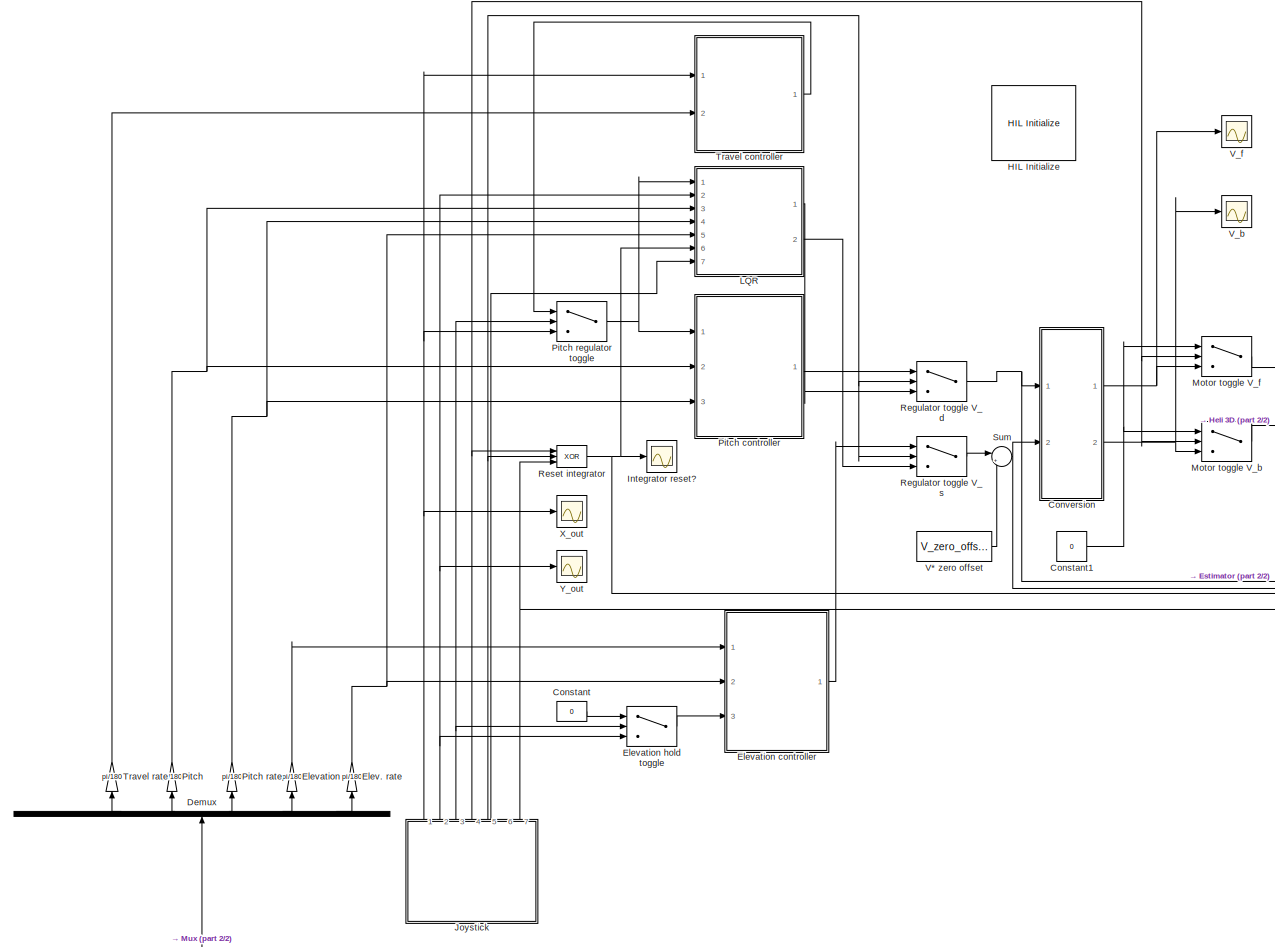
[diagram: root canvas - part 1/2, left side, full height]
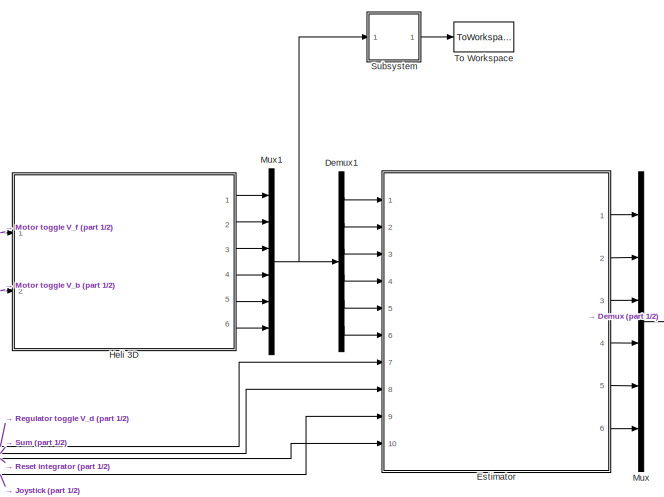
[diagram: root canvas - part 2/2, middle right region]
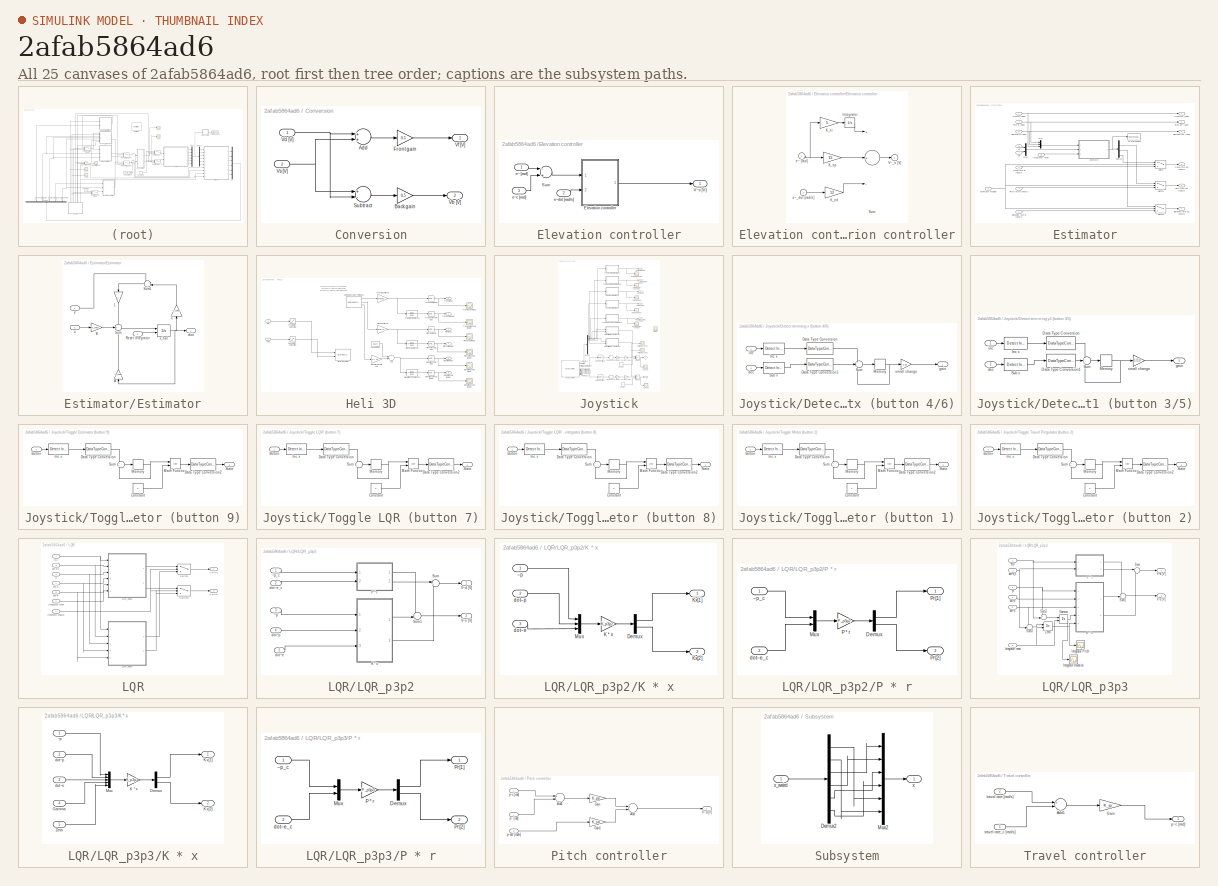
[diagram: thumbnail index - all 25 canvases of the model, root first then tree order]
MODEL slx_2afab5864ad6
KIND model
CONFIG PostLoadFcn = qc_set_target_type(getConfigSet(bdroot, 'QUARC Default Target Configuration'));
BLOCK [Constant] Constant
  Value = 0
BLOCK [Constant] Constant1
  Value = 0
BLOCK [SubSystem] Conversion
  Ports = [2, 2]
  RequestExecContextInheritance = off
BLOCK [Sum] Conversion/Add
  InputSameDT = off
  OutDataTypeStr = Inherit: Inherit via internal rule
  Ports = [2, 1]
  SaturateOnIntegerOverflow = off
BLOCK [Gain] Conversion/Back gain
  Gain = 0.5
  OutDataTypeStr = Inherit: Inherit via internal rule
  ParamDataTypeStr = Inherit: Inherit via internal rule
  SaturateOnIntegerOverflow = off
BLOCK [Gain] Conversion/Front gain
  Gain = 0.5
  OutDataTypeStr = Inherit: Inherit via internal rule
  ParamDataTypeStr = Inherit: Inherit via internal rule
  SaturateOnIntegerOverflow = off
BLOCK [Sum] Conversion/Subtract
  InputSameDT = off
  Inputs = +-
  OutDataTypeStr = Inherit: Inherit via internal rule
  Ports = [2, 1]
  SaturateOnIntegerOverflow = off
BLOCK [Outport] Conversion/Vb [V]
  IconDisplay = Port number
  Port = 2
BLOCK [Inport] Conversion/Vd [V]
  IconDisplay = Port number
BLOCK [Outport] Conversion/Vf [V]
  IconDisplay = Port number
BLOCK [Inport] Conversion/Vs [V]
  IconDisplay = Port number
  Port = 2
BLOCK [Demux] Demux
  DisplayOption = bar
  Outputs = 6
  Ports = [1, 6]
BLOCK [Demux] Demux1
  DisplayOption = bar
  Outputs = 6
  Ports = [1, 6]
BLOCK [Gain] Elev. rate
  Gain = pi/180
  OutDataTypeStr = Inherit: Inherit via internal rule
  ParamDataTypeStr = Inherit: Inherit via internal rule
  SaturateOnIntegerOverflow = off
BLOCK [Gain] Elevation
  Gain = pi/180
  OutDataTypeStr = Inherit: Inherit via internal rule
  ParamDataTypeStr = Inherit: Inherit via internal rule
  SaturateOnIntegerOverflow = off
BLOCK [SubSystem] Elevation controller
  Ports = [3, 1]
  RequestExecContextInheritance = off
BLOCK [SubSystem] Elevation controller/Elevation controller
  Ports = [2, 1]
  RequestExecContextInheritance = off
BLOCK [Integrator] Elevation controller/Elevation controller/Integrator
  LimitOutput = on
  Ports = [1, 1]
BLOCK [Gain] Elevation controller/Elevation controller/K_ed
  Gain = 12
BLOCK [Gain] Elevation controller/Elevation controller/K_ei
  Gain = 5
BLOCK [Gain] Elevation controller/Elevation controller/K_ep
  Gain = 15
BLOCK [Sum] Elevation controller/Elevation controller/Sum
  Inputs = ++-
  Ports = [3, 1]
BLOCK [Outport] Elevation controller/Elevation controller/V~_s [V]
  IconDisplay = Port number
  InitialOutput = 0
BLOCK [Inport] Elevation controller/Elevation controller/e~ [rad]
  IconDisplay = Port number
BLOCK [Inport] Elevation controller/Elevation controller/e~_dot [rad//s]
  IconDisplay = Port number
  Port = 2
BLOCK [Sum] Elevation controller/Sum
  Inputs = -+
  Ports = [2, 1]
BLOCK [Outport] Elevation controller/V~s [V]
  IconDisplay = Port number
  InitialOutput = 0
BLOCK [Inport] Elevation controller/e~ [rad]
  IconDisplay = Port number
BLOCK [Inport] Elevation controller/e~c [rad]
  IconDisplay = Port number
  Port = 3
BLOCK [Inport] Elevation controller/e~dot [rad//s]
  IconDisplay = Port number
  Port = 2
BLOCK [Switch] Elevation hold toggle
  Criteria = u2 > Threshold
  InputSameDT = off
  SaturateOnIntegerOverflow = off
BLOCK [SubSystem] Estimator
  Ports = [10, 6]
  RequestExecContextInheritance = off
BLOCK [Demux] Estimator/Demux
  DisplayOption = bar
  Outputs = 6
  Ports = [1, 6]
BLOCK [Inport] Estimator/Elevation in [deg]
  IconDisplay = Port number
  Port = 5
BLOCK [Outport] Estimator/Elevation out [deg]
  IconDisplay = Port number
  Port = 5
BLOCK [Inport] Estimator/Elevation rate in [deg//s]
  IconDisplay = Port number
  Port = 6
BLOCK [Outport] Estimator/Elevation rate out [deg//s]
  IconDisplay = Port number
  Port = 6
BLOCK [SubSystem] Estimator/Estimator
  Ports = [3, 1]
  RequestExecContextInheritance = off
BLOCK [Inport] Estimator/Estimator enabled 
  IconDisplay = Port number
  Port = 9
BLOCK [Gain] Estimator/Estimator/A
  Gain = A_p4p2
  Multiplication = Matrix(K*u)
  OutDataTypeStr = Inherit: Inherit via internal rule
  ParamDataTypeStr = Inherit: Inherit via internal rule
  SaturateOnIntegerOverflow = off
BLOCK [Gain] Estimator/Estimator/B
  Gain = B_p4p2
  Multiplication = Matrix(K*u)
  OutDataTypeStr = Inherit: Inherit via internal rule
  ParamDataTypeStr = Inherit: Inherit via internal rule
  SaturateOnIntegerOverflow = off
BLOCK [Gain] Estimator/Estimator/C
  Gain = C_p4p2
  Multiplication = Matrix(K*u)
  OutDataTypeStr = Inherit: Inherit via internal rule
  ParamDataTypeStr = Inherit: Inherit via internal rule
  SaturateOnIntegerOverflow = off
BLOCK [Gain] Estimator/Estimator/L
  Gain = L
  Multiplication = Matrix(K*u)
  OutDataTypeStr = Inherit: Inherit via internal rule
  ParamDataTypeStr = Inherit: Inherit via internal rule
  SaturateOnIntegerOverflow = off
BLOCK [Inport] Estimator/Estimator/Reset integrator
  IconDisplay = Port number
  Port = 3
BLOCK [Sum] Estimator/Estimator/Sum
  IconShape = round
  InputSameDT = off
  Inputs = +++
  OutDataTypeStr = Inherit: Inherit via internal rule
  Ports = [3, 1]
  SaturateOnIntegerOverflow = off
BLOCK [Sum] Estimator/Estimator/Sum1
  IconShape = round
  InputSameDT = off
  Inputs = +-|
  OutDataTypeStr = Inherit: Inherit via internal rule
  Ports = [2, 1]
  SaturateOnIntegerOverflow = off
BLOCK [Inport] Estimator/Estimator/u
  IconDisplay = Port number
  Port = 2
BLOCK [Integrator] Estimator/Estimator/x_hat
  ExternalReset = either
  Ports = [2, 1]
BLOCK [Outport] Estimator/Estimator/xhat
  IconDisplay = Port number
BLOCK [Inport] Estimator/Estimator/y
  IconDisplay = Port number
BLOCK [Inport] Estimator/Integrator reset
  IconDisplay = Port number
  Port = 10
BLOCK [Mux] Estimator/Mux
  DisplayOption = bar
  Inputs = 3
  Ports = [3, 1]
BLOCK [Mux] Estimator/Mux1
  DisplayOption = bar
  Inputs = 2
  Ports = [2, 1]
BLOCK [Inport] Estimator/Pitch in [deg]
  IconDisplay = Port number
  Port = 3
BLOCK [Outport] Estimator/Pitch out [deg]
  IconDisplay = Port number
  Port = 3
BLOCK [Inport] Estimator/Pitch rate in [deg//s]
  IconDisplay = Port number
  Port = 4
BLOCK [Outport] Estimator/Pitch rate out [deg//s]
  IconDisplay = Port number
  Port = 4
BLOCK [Switch] Estimator/Switch
  Criteria = u2 > Threshold
  InputSameDT = off
  SaturateOnIntegerOverflow = off
BLOCK [Switch] Estimator/Switch1
  Criteria = u2 > Threshold
  InputSameDT = off
  SaturateOnIntegerOverflow = off
BLOCK [Switch] Estimator/Switch2
  Criteria = u2 > Threshold
  InputSameDT = off
  SaturateOnIntegerOverflow = off
BLOCK [ToWorkspace] Estimator/To Workspace
  FixptAsFi = on
  MaxDataPoints = inf
  Ports = [1]
  SampleTime = -1
  Save2DSignal = 3-D array (concatenate along third dimension)
  SaveFormat = Structure With Time
  VariableName = xhat
BLOCK [Inport] Estimator/Travel in [deg]
  IconDisplay = Port number
BLOCK [Outport] Estimator/Travel out [deg]
  IconDisplay = Port number
BLOCK [Inport] Estimator/Travel rate in [deg//s]
  IconDisplay = Port number
  Port = 2
BLOCK [Outport] Estimator/Travel rate out [deg//s]
  IconDisplay = Port number
  Port = 2
BLOCK [Inport] Estimator/Vd
  IconDisplay = Port number
  Port = 7
BLOCK [Inport] Estimator/Vs
  IconDisplay = Port number
  Port = 8
BLOCK [Reference] HIL Initialize  REF=quarc_library/Data Acquisition/Generic/Configuration/HIL Initialize
  AttributesFormatString = %<object_name> (%<board_type>-%<board_number>)
  Ports = []
  Priority = -99
  SourceBlock = quarc_library/Data Acquisition/Generic/Configuration/HIL Initialize
  SourceType = HIL Initialize
  UserDataPersistent = on
  active = off
  analog_input_channels = [0:7]
  analog_input_maximums = 10
  analog_input_minimums = -10
  analog_output_channels = [0:7]
  analog_output_maximums = 10
  analog_output_minimums = -10
  board_number = 0
  board_options = update_rate=normal;decimation=1
  board_type = q8_usb
  clock_modes = []
  digital_input_channels = []
  digital_output_channels = []
  digital_output_configuration = []
  encoder_channels = [0:7]
  encoder_filter_frequency = []
  exclusive = off
  final_analog_outputs = [0]
  final_digital_outputs = [1]
  final_other_outputs = []
  final_pwm_outputs = [0]
  hardware_clocks = [0:2]
  initial_analog_outputs = [0]
  initial_clock_frequencies = []
  initial_digital_outputs = [1]
  initial_encoder_counts = [0]
  initial_other_outputs = []
  initial_pwm_outputs = [0]
  object_name = HIL-1
  other_output_channels = []
  pwm_alignment = [0]
  pwm_channels = [0:7]
  pwm_configuration = [0]
  pwm_frequency = 99.532799999999995e6/4095
  pwm_leading_deadband = [0]
  pwm_modes = 0
  pwm_polarity = [1]
  pwm_trailing_deadband = [0]
  quadrature = [4]
  set_analog_input_params_at_start = on
  set_analog_input_params_at_switch_in = off
  set_analog_output_params_at_start = on
  set_analog_output_params_at_switch_in = off
  set_analog_outputs_at_start = on
  set_analog_outputs_at_switch_in = off
  set_analog_outputs_at_switch_out = off
  set_analog_outputs_at_terminate = on
  set_analog_outputs_on_watchdog = off
  set_clock_frequencies_at_start = off
  set_clock_frequencies_at_switch_in = off
  set_clock_params_at_start = off
  set_clock_params_at_switch_in = off
  set_digital_output_params_at_start = off
  set_digital_output_params_at_switch_in = off
  set_digital_outputs_at_start = on
  set_digital_outputs_at_switch_in = off
  set_digital_outputs_at_switch_out = off
  set_digital_outputs_at_terminate = on
  set_digital_outputs_on_watchdog = off
  set_encoder_counts_at_start = on
  set_encoder_counts_at_switch_in = off
  set_encoder_params_at_start = on
  set_encoder_params_at_switch_in = off
  set_other_outputs_at_start = off
  set_other_outputs_at_switch_in = off
  set_other_outputs_at_switch_out = off
  set_other_outputs_at_terminate = off
  set_other_outputs_on_watchdog = off
  set_pwm_outputs_at_start = on
  set_pwm_outputs_at_switch_in = off
  set_pwm_outputs_at_switch_out = off
  set_pwm_outputs_at_terminate = on
  set_pwm_outputs_on_watchdog = off
  set_pwm_params_at_start = on
  set_pwm_params_at_switch_in = off
  watchdog_analog_outputs = 0
  watchdog_digital_outputs = [1]
  watchdog_other_outputs = []
  watchdog_pwm_outputs = [0]
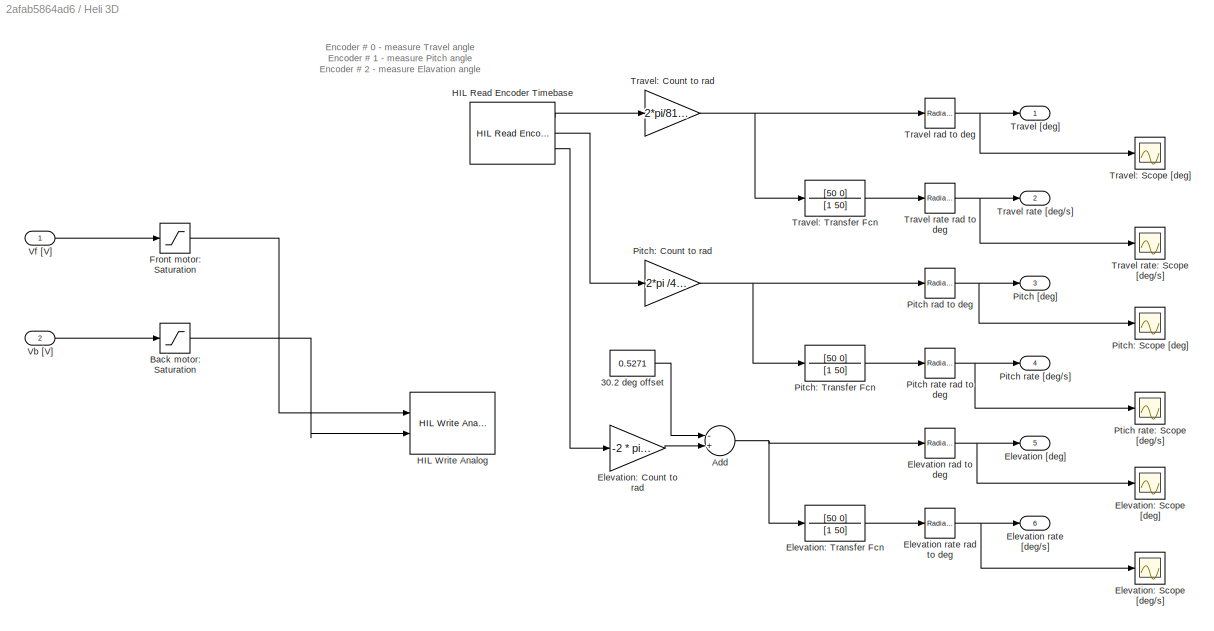
BLOCK [SubSystem] Heli 3D
  Ports = [2, 6]
  RequestExecContextInheritance = off
BLOCK [Constant] Heli 3D/30.2 deg offset
  Value = 0.5271
BLOCK [Sum] Heli 3D/Add
  InputSameDT = off
  Inputs = -+
  OutDataTypeStr = Inherit: Inherit via internal rule
  Ports = [2, 1]
  SaturateOnIntegerOverflow = off
BLOCK [Saturate] Heli 3D/Back motor: Saturation
  InputPortMap = u0
  LowerLimit = -5
  Ports = [1, 1]
  UpperLimit = 5
BLOCK [Outport] Heli 3D/Elevation [deg]
  IconDisplay = Port number
  Port = 5
BLOCK [Reference] Heli 3D/Elevation rad to deg  REF=simulink_extras/Transformations/Radians
to Degrees
  Ports = [1, 1]
  SourceBlock = simulink_extras/Transformations/Radians\nto Degrees
  SourceType = RadiansToDegrees
BLOCK [Outport] Heli 3D/Elevation rate [deg//s]
  IconDisplay = Port number
  Port = 6
BLOCK [Reference] Heli 3D/Elevation rate rad to deg  REF=simulink_extras/Transformations/Radians
to Degrees
  Ports = [1, 1]
  SourceBlock = simulink_extras/Transformations/Radians\nto Degrees
  SourceType = RadiansToDegrees
BLOCK [Gain] Heli 3D/Elevation: Count to rad
  Gain = -2 * pi /4096
  OutDataTypeStr = Inherit: Inherit via internal rule
  ParamDataTypeStr = Inherit: Inherit via internal rule
  SaturateOnIntegerOverflow = off
BLOCK [Scope] Heli 3D/Elevation: Scope [deg//s]
  DataFormat = StructureWithTime
  Floating = off
  NumInputPorts = 1
  Ports = [1]
  SampleTime = 0
  SaveName = ScopeData13
  ShowLegends = off
  YMax = 15
  YMin = -15
BLOCK [Scope] Heli 3D/Elevation: Scope [deg]
  DataFormat = StructureWithTime
  Floating = off
  NumInputPorts = 1
  Ports = [1]
  SampleTime = 0
  SaveName = ScopeData12
  ShowLegends = off
  YMax = 0
  YMin = -32.5
BLOCK [TransferFcn] Heli 3D/Elevation: Transfer Fcn
  Denominator = [1 50]
  Numerator = [50 0]
BLOCK [Saturate] Heli 3D/Front motor: Saturation
  InputPortMap = u0
  LowerLimit = -5
  Ports = [1, 1]
  UpperLimit = 5
BLOCK [Reference] Heli 3D/HIL Read Encoder Timebase  REF=quarc_library/Data Acquisition/Generic/Timebases/HIL Read Encoder
Timebase
  AttributesFormatString = (%<object_name>)
  Ports = [0, 3]
  SourceBlock = quarc_library/Data Acquisition/Generic/Timebases/HIL Read Encoder\nTimebase
  SourceType = HIL Read Encoder Timebase
  UserDataPersistent = on
  active = on
  channels = [0:2]
  clock = 0
  data_type = double
  data_type_mode = Inherit via back propagation
  object_name = HIL-1
  samples_in_buffer = max(ceil(1/qc_get_step_size), 1)
  vector_output = off
BLOCK [Reference] Heli 3D/HIL Write Analog  REF=quarc_library/Data Acquisition/Generic/Immediate I//O/HIL Write Analog
  AttributesFormatString = (%<object_name>)
  Ports = [2]
  SourceBlock = quarc_library/Data Acquisition/Generic/Immediate I//O/HIL Write Analog
  SourceType = HIL Write Analog
  UserDataPersistent = on
  active = off
  channels = [0:1]
  object_name = HIL-1
  sample_time = -1
  vector_input = off
BLOCK [Outport] Heli 3D/Pitch [deg]
  IconDisplay = Port number
  Port = 3
BLOCK [Reference] Heli 3D/Pitch rad to deg  REF=simulink_extras/Transformations/Radians
to Degrees
  Ports = [1, 1]
  SourceBlock = simulink_extras/Transformations/Radians\nto Degrees
  SourceType = RadiansToDegrees
BLOCK [Outport] Heli 3D/Pitch rate [deg//s]
  IconDisplay = Port number
  Port = 4
BLOCK [Reference] Heli 3D/Pitch rate rad to deg  REF=simulink_extras/Transformations/Radians
to Degrees
  Ports = [1, 1]
  SourceBlock = simulink_extras/Transformations/Radians\nto Degrees
  SourceType = RadiansToDegrees
BLOCK [Gain] Heli 3D/Pitch: Count to rad
  Gain = 2*pi /4096
  OutDataTypeStr = Inherit: Inherit via internal rule
  ParamDataTypeStr = Inherit: Inherit via internal rule
  SaturateOnIntegerOverflow = off
BLOCK [Scope] Heli 3D/Pitch: Scope [deg]
  DataFormat = StructureWithTime
  Floating = off
  NumInputPorts = 1
  Ports = [1]
  SampleTime = 0
  SaveName = ScopeData10
  ShowLegends = off
  YMax = 1
  YMin = -0.3
BLOCK [TransferFcn] Heli 3D/Pitch: Transfer Fcn
  Denominator = [1 50]
  Numerator = [50 0]
BLOCK [Scope] Heli 3D/Ptich rate: Scope [deg//s]
  DataFormat = StructureWithTime
  Floating = off
  NumInputPorts = 1
  Ports = [1]
  SampleTime = 0
  SaveName = ScopeData11
  ShowLegends = off
  YMax = 15
  YMin = -15
BLOCK [Outport] Heli 3D/Travel [deg]
  IconDisplay = Port number
BLOCK [Reference] Heli 3D/Travel rad to deg  REF=simulink_extras/Transformations/Radians
to Degrees
  Ports = [1, 1]
  SourceBlock = simulink_extras/Transformations/Radians\nto Degrees
  SourceType = RadiansToDegrees
BLOCK [Reference] Heli 3D/Travel rate  rad to deg  REF=simulink_extras/Transformations/Radians
to Degrees
  Ports = [1, 1]
  SourceBlock = simulink_extras/Transformations/Radians\nto Degrees
  SourceType = RadiansToDegrees
BLOCK [Outport] Heli 3D/Travel rate [deg//s]
  IconDisplay = Port number
  Port = 2
BLOCK [Scope] Heli 3D/Travel rate: Scope [deg//s]
  DataFormat = StructureWithTime
  Floating = off
  NumInputPorts = 1
  Ports = [1]
  SampleTime = 0
  SaveName = ScopeData9
  ShowLegends = off
  YMax = 3
  YMin = -3.5
BLOCK [Gain] Heli 3D/Travel: Count to rad
  Gain = 2*pi/8192
  OutDataTypeStr = Inherit: Inherit via internal rule
  ParamDataTypeStr = Inherit: Inherit via internal rule
  SaturateOnIntegerOverflow = off
BLOCK [Scope] Heli 3D/Travel: Scope [deg]
  DataFormat = StructureWithTime
  Floating = off
  NumInputPorts = 1
  Ports = [1]
  SampleTime = 0
  SaveName = ScopeData8
  ShowLegends = off
  YMax = 0.5
  YMin = -2.75
BLOCK [TransferFcn] Heli 3D/Travel: Transfer Fcn
  Denominator = [1 50]
  Numerator = [50 0]
BLOCK [Inport] Heli 3D/Vb [V]
  IconDisplay = Port number
  Port = 2
BLOCK [Inport] Heli 3D/Vf [V]
  IconDisplay = Port number
BLOCK [Scope] Integrator reset?
  Floating = off
  NumInputPorts = 1
  Ports = [1]
  SaveName = ScopeData18
  ShowLegends = off
  TimeRange = 10
  YMax = 6.5
  YMin = -1
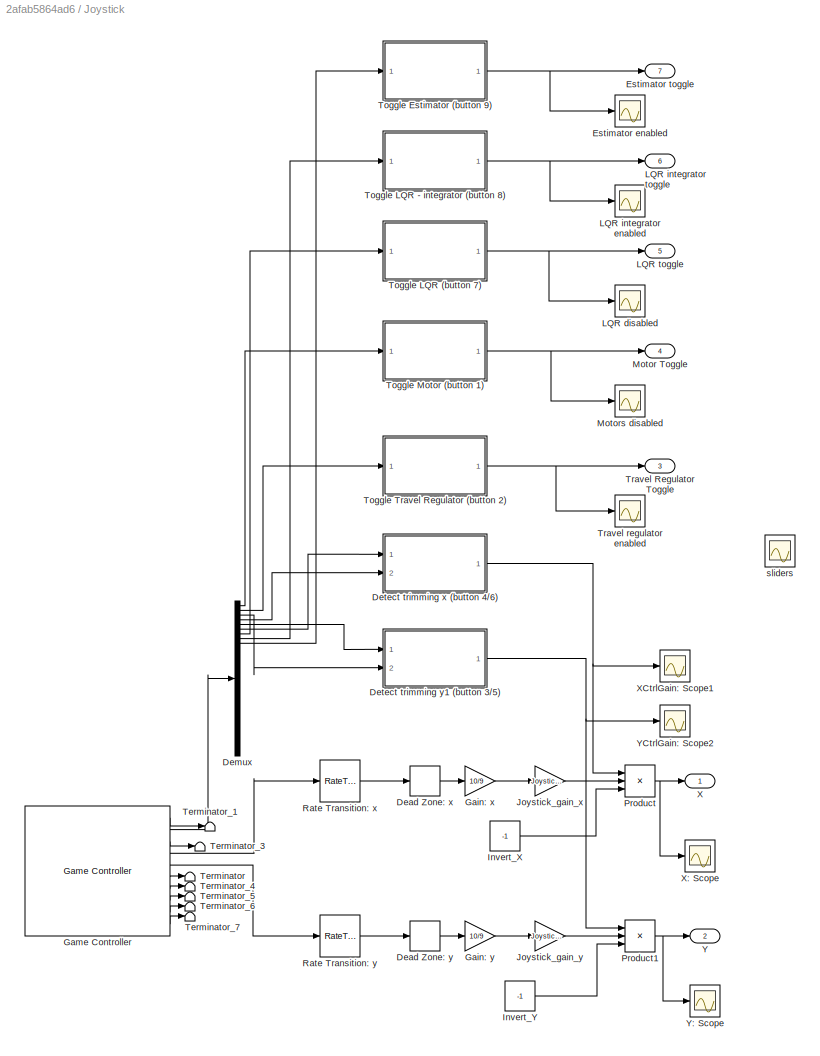
BLOCK [SubSystem] Joystick
  Ports = [0, 7]
  RequestExecContextInheritance = off
BLOCK [DeadZone] Joystick/Dead Zone: x
  LowerValue = -0.1
  UpperValue = 0.1
BLOCK [DeadZone] Joystick/Dead Zone: y
  LowerValue = -0.1
  UpperValue = 0.1
BLOCK [Demux] Joystick/Demux
  DisplayOption = bar
  Outputs = 32
  Ports = [1, 32]
BLOCK [SubSystem] Joystick/Detect trimming x (button 4//6)
  Ports = [2, 1]
  RequestExecContextInheritance = off
BLOCK [DataTypeConversion] Joystick/Detect trimming x (button 4//6)/Data Type Conversion
  OutDataTypeStr = uint8
  RndMeth = Floor
  SaturateOnIntegerOverflow = off
BLOCK [DataTypeConversion] Joystick/Detect trimming x (button 4//6)/Data Type Conversion1
  OutDataTypeStr = uint8
  RndMeth = Floor
  SaturateOnIntegerOverflow = off
BLOCK [Reference] Joystick/Detect trimming x (button 4//6)/Inc x  REF=simulink/Logic and Bit
Operations/Detect
Increase
  InputProcessing = Inherited
  OutDataTypeStr = boolean
  Ports = [1, 1]
  SourceBlock = simulink/Logic and Bit\nOperations/Detect\nIncrease
  SourceType = Detect Increase
  vinit = 0.0
BLOCK [Memory] Joystick/Detect trimming x (button 4//6)/Memory
  InheritSampleTime = on
  X0 = 20
BLOCK [Reference] Joystick/Detect trimming x (button 4//6)/Sub x  REF=simulink/Logic and Bit
Operations/Detect
Increase
  InputProcessing = Inherited
  OutDataTypeStr = boolean
  Ports = [1, 1]
  SourceBlock = simulink/Logic and Bit\nOperations/Detect\nIncrease
  SourceType = Detect Increase
  vinit = 0.0
BLOCK [Sum] Joystick/Detect trimming x (button 4//6)/Sum
  IconShape = round
  InputSameDT = off
  Inputs = +-+
  OutDataTypeStr = Inherit: Inherit via internal rule
  Ports = [3, 1]
  SaturateOnIntegerOverflow = off
BLOCK [Inport] Joystick/Detect trimming x (button 4//6)/dec
  IconDisplay = Port number
  Port = 2
BLOCK [Outport] Joystick/Detect trimming x (button 4//6)/gain
  IconDisplay = Port number
BLOCK [Inport] Joystick/Detect trimming x (button 4//6)/inc
  IconDisplay = Port number
BLOCK [Gain] Joystick/Detect trimming x (button 4//6)/small change
  Gain = 1/10
  OutDataTypeStr = Inherit: Inherit via internal rule
  ParamDataTypeStr = Inherit: Inherit via internal rule
  SaturateOnIntegerOverflow = off
BLOCK [SubSystem] Joystick/Detect trimming y1 (button 3//5)
  Ports = [2, 1]
  RequestExecContextInheritance = off
BLOCK [DataTypeConversion] Joystick/Detect trimming y1 (button 3//5)/Data Type Conversion
  OutDataTypeStr = uint8
  RndMeth = Floor
  SaturateOnIntegerOverflow = off
BLOCK [DataTypeConversion] Joystick/Detect trimming y1 (button 3//5)/Data Type Conversion1
  OutDataTypeStr = uint8
  RndMeth = Floor
  SaturateOnIntegerOverflow = off
BLOCK [Reference] Joystick/Detect trimming y1 (button 3//5)/Inc x  REF=simulink/Logic and Bit
Operations/Detect
Increase
  InputProcessing = Inherited
  OutDataTypeStr = boolean
  Ports = [1, 1]
  SourceBlock = simulink/Logic and Bit\nOperations/Detect\nIncrease
  SourceType = Detect Increase
  vinit = 0.0
BLOCK [Memory] Joystick/Detect trimming y1 (button 3//5)/Memory
  InheritSampleTime = on
  X0 = 15
BLOCK [Reference] Joystick/Detect trimming y1 (button 3//5)/Sub x  REF=simulink/Logic and Bit
Operations/Detect
Increase
  InputProcessing = Inherited
  OutDataTypeStr = boolean
  Ports = [1, 1]
  SourceBlock = simulink/Logic and Bit\nOperations/Detect\nIncrease
  SourceType = Detect Increase
  vinit = 0.0
BLOCK [Sum] Joystick/Detect trimming y1 (button 3//5)/Sum
  IconShape = round
  InputSameDT = off
  Inputs = +-+
  OutDataTypeStr = Inherit: Inherit via internal rule
  Ports = [3, 1]
  SaturateOnIntegerOverflow = off
BLOCK [Inport] Joystick/Detect trimming y1 (button 3//5)/dec
  IconDisplay = Port number
  Port = 2
BLOCK [Outport] Joystick/Detect trimming y1 (button 3//5)/gain
  IconDisplay = Port number
BLOCK [Inport] Joystick/Detect trimming y1 (button 3//5)/inc
  IconDisplay = Port number
BLOCK [Gain] Joystick/Detect trimming y1 (button 3//5)/small change
  Gain = 1/10
  OutDataTypeStr = Inherit: Inherit via internal rule
  ParamDataTypeStr = Inherit: Inherit via internal rule
  SaturateOnIntegerOverflow = off
BLOCK [Scope] Joystick/Estimator enabled
  DataFormat = StructureWithTime
  Floating = off
  NumInputPorts = 1
  Ports = [1]
  SampleTime = 0
  SaveName = ScopeData22
  ShowLegends = off
  YMax = 1.05
  YMin = 0.95
BLOCK [Outport] Joystick/Estimator toggle
  IconDisplay = Port number
  Port = 7
BLOCK [Gain] Joystick/Gain: x
  Gain = 10/9
  OutDataTypeStr = Inherit: Inherit via internal rule
  ParamDataTypeStr = Inherit: Inherit via internal rule
  SaturateOnIntegerOverflow = off
BLOCK [Gain] Joystick/Gain: y
  Gain = 10/9
  OutDataTypeStr = Inherit: Inherit via internal rule
  ParamDataTypeStr = Inherit: Inherit via internal rule
  SaturateOnIntegerOverflow = off
BLOCK [Reference] Joystick/Game Controller  REF=quarc_library/Devices/Peripherals/Target/Game Controller
  Ports = [0, 10]
  SourceBlock = quarc_library/Devices/Peripherals/Target/Game Controller
  SourceType = Game Controller
  auto_center = off
  buffer_size = 12
  controller = 1
  deadzone = []
  enabled = on
  sample_time = max(qc_get_step_size, 0.01)
  saturation = []
BLOCK [Constant] Joystick/Invert_X
  Value = -1
BLOCK [Constant] Joystick/Invert_Y
  Value = -1
BLOCK [Gain] Joystick/Joystick_gain_x
  Gain = Joystick_gain_x
  OutDataTypeStr = Inherit: Inherit via internal rule
  ParamDataTypeStr = Inherit: Inherit via internal rule
  SaturateOnIntegerOverflow = off
BLOCK [Gain] Joystick/Joystick_gain_y
  Gain = Joystick_gain_y
  OutDataTypeStr = Inherit: Inherit via internal rule
  ParamDataTypeStr = Inherit: Inherit via internal rule
  SaturateOnIntegerOverflow = off
BLOCK [Scope] Joystick/LQR disabled
  DataFormat = StructureWithTime
  Floating = off
  NumInputPorts = 1
  Ports = [1]
  SampleTime = 0
  SaveName = ScopeData15
  ShowLegends = off
  YMax = 1.05
  YMin = 0.95
BLOCK [Scope] Joystick/LQR integrator enabled
  DataFormat = StructureWithTime
  Floating = off
  NumInputPorts = 1
  Ports = [1]
  SampleTime = 0
  SaveName = ScopeData21
  ShowLegends = off
  YMax = 1.05
  YMin = 0.95
BLOCK [Outport] Joystick/LQR integrator toggle
  IconDisplay = Port number
  Port = 6
BLOCK [Outport] Joystick/LQR toggle
  IconDisplay = Port number
  Port = 5
BLOCK [Outport] Joystick/Motor Toggle
  IconDisplay = Port number
  Port = 4
BLOCK [Scope] Joystick/Motors disabled
  DataFormat = StructureWithTime
  Floating = off
  NumInputPorts = 1
  Ports = [1]
  SampleTime = 0
  SaveName = ScopeData6
  ShowLegends = off
  YMax = 1.05
  YMin = 0.95
BLOCK [Product] Joystick/Product
  InputSameDT = off
  Inputs = 3
  OutDataTypeStr = Inherit: Inherit via internal rule
  Ports = [3, 1]
  RndMeth = Floor
  SaturateOnIntegerOverflow = off
BLOCK [Product] Joystick/Product1
  InputSameDT = off
  Inputs = 3
  OutDataTypeStr = Inherit: Inherit via internal rule
  Ports = [3, 1]
  RndMeth = Floor
  SaturateOnIntegerOverflow = off
BLOCK [RateTransition] Joystick/Rate Transition: x
BLOCK [RateTransition] Joystick/Rate Transition: y
BLOCK [Terminator] Joystick/Terminator
BLOCK [Terminator] Joystick/Terminator_1
BLOCK [Terminator] Joystick/Terminator_3
BLOCK [Terminator] Joystick/Terminator_4
BLOCK [Terminator] Joystick/Terminator_5
BLOCK [Terminator] Joystick/Terminator_6
BLOCK [Terminator] Joystick/Terminator_7
BLOCK [SubSystem] Joystick/Toggle Estimator (button 9)
  Ports = [1, 1]
  RequestExecContextInheritance = off
BLOCK [Inport] Joystick/Toggle Estimator (button 9)/Button
  IconDisplay = Port number
BLOCK [Constant] Joystick/Toggle Estimator (button 9)/Constant
  Value = 2
BLOCK [DataTypeConversion] Joystick/Toggle Estimator (button 9)/Data Type Conversion
  OutDataTypeStr = uint8
  RndMeth = Floor
  SaturateOnIntegerOverflow = off
BLOCK [DataTypeConversion] Joystick/Toggle Estimator (button 9)/Data Type Conversion2
  OutDataTypeStr = boolean
  RndMeth = Floor
  SaturateOnIntegerOverflow = off
BLOCK [Reference] Joystick/Toggle Estimator (button 9)/Inc x  REF=simulink/Logic and Bit
Operations/Detect
Increase
  InputProcessing = Inherited
  OutDataTypeStr = boolean
  Ports = [1, 1]
  SourceBlock = simulink/Logic and Bit\nOperations/Detect\nIncrease
  SourceType = Detect Increase
  vinit = 0.0
BLOCK [Math] Joystick/Toggle Estimator (button 9)/Math Function
  Operator = rem
  Ports = [2, 1]
BLOCK [Memory] Joystick/Toggle Estimator (button 9)/Memory
  InheritSampleTime = on
  X0 = 15
BLOCK [Outport] Joystick/Toggle Estimator (button 9)/State
  IconDisplay = Port number
BLOCK [Sum] Joystick/Toggle Estimator (button 9)/Sum
  IconShape = round
  InputSameDT = off
  OutDataTypeStr = Inherit: Inherit via internal rule
  Ports = [2, 1]
  SaturateOnIntegerOverflow = off
BLOCK [SubSystem] Joystick/Toggle LQR (button 7)
  Ports = [1, 1]
  RequestExecContextInheritance = off
BLOCK [Inport] Joystick/Toggle LQR (button 7)/Button
  IconDisplay = Port number
BLOCK [Constant] Joystick/Toggle LQR (button 7)/Constant
  Value = 2
BLOCK [DataTypeConversion] Joystick/Toggle LQR (button 7)/Data Type Conversion
  OutDataTypeStr = uint8
  RndMeth = Floor
  SaturateOnIntegerOverflow = off
BLOCK [DataTypeConversion] Joystick/Toggle LQR (button 7)/Data Type Conversion2
  OutDataTypeStr = boolean
  RndMeth = Floor
  SaturateOnIntegerOverflow = off
BLOCK [Reference] Joystick/Toggle LQR (button 7)/Inc x  REF=simulink/Logic and Bit
Operations/Detect
Increase
  InputProcessing = Inherited
  OutDataTypeStr = boolean
  Ports = [1, 1]
  SourceBlock = simulink/Logic and Bit\nOperations/Detect\nIncrease
  SourceType = Detect Increase
  vinit = 0.0
BLOCK [Math] Joystick/Toggle LQR (button 7)/Math Function
  Operator = rem
  Ports = [2, 1]
BLOCK [Memory] Joystick/Toggle LQR (button 7)/Memory
  InheritSampleTime = on
  X0 = 15
BLOCK [Outport] Joystick/Toggle LQR (button 7)/State
  IconDisplay = Port number
BLOCK [Sum] Joystick/Toggle LQR (button 7)/Sum
  IconShape = round
  InputSameDT = off
  OutDataTypeStr = Inherit: Inherit via internal rule
  Ports = [2, 1]
  SaturateOnIntegerOverflow = off
BLOCK [SubSystem] Joystick/Toggle LQR - integrator (button 8)
  Ports = [1, 1]
  RequestExecContextInheritance = off
BLOCK [Inport] Joystick/Toggle LQR - integrator (button 8)/Button
  IconDisplay = Port number
BLOCK [Constant] Joystick/Toggle LQR - integrator (button 8)/Constant
  Value = 2
BLOCK [DataTypeConversion] Joystick/Toggle LQR - integrator (button 8)/Data Type Conversion
  OutDataTypeStr = uint8
  RndMeth = Floor
  SaturateOnIntegerOverflow = off
BLOCK [DataTypeConversion] Joystick/Toggle LQR - integrator (button 8)/Data Type Conversion2
  OutDataTypeStr = boolean
  RndMeth = Floor
  SaturateOnIntegerOverflow = off
BLOCK [Reference] Joystick/Toggle LQR - integrator (button 8)/Inc x  REF=simulink/Logic and Bit
Operations/Detect
Increase
  InputProcessing = Inherited
  OutDataTypeStr = boolean
  Ports = [1, 1]
  SourceBlock = simulink/Logic and Bit\nOperations/Detect\nIncrease
  SourceType = Detect Increase
  vinit = 0.0
BLOCK [Math] Joystick/Toggle LQR - integrator (button 8)/Math Function
  Operator = rem
  Ports = [2, 1]
BLOCK [Memory] Joystick/Toggle LQR - integrator (button 8)/Memory
  InheritSampleTime = on
  X0 = 15
BLOCK [Outport] Joystick/Toggle LQR - integrator (button 8)/State
  IconDisplay = Port number
BLOCK [Sum] Joystick/Toggle LQR - integrator (button 8)/Sum
  IconShape = round
  InputSameDT = off
  OutDataTypeStr = Inherit: Inherit via internal rule
  Ports = [2, 1]
  SaturateOnIntegerOverflow = off
BLOCK [SubSystem] Joystick/Toggle Motor (button 1)
  Ports = [1, 1]
  RequestExecContextInheritance = off
BLOCK [Inport] Joystick/Toggle Motor (button 1)/Button
  IconDisplay = Port number
BLOCK [Constant] Joystick/Toggle Motor (button 1)/Constant
  Value = 2
BLOCK [DataTypeConversion] Joystick/Toggle Motor (button 1)/Data Type Conversion
  OutDataTypeStr = uint8
  RndMeth = Floor
  SaturateOnIntegerOverflow = off
BLOCK [DataTypeConversion] Joystick/Toggle Motor (button 1)/Data Type Conversion2
  OutDataTypeStr = boolean
  RndMeth = Floor
  SaturateOnIntegerOverflow = off
BLOCK [Reference] Joystick/Toggle Motor (button 1)/Inc x  REF=simulink/Logic and Bit
Operations/Detect
Increase
  InputProcessing = Inherited
  OutDataTypeStr = boolean
  Ports = [1, 1]
  SourceBlock = simulink/Logic and Bit\nOperations/Detect\nIncrease
  SourceType = Detect Increase
  vinit = 0.0
BLOCK [Math] Joystick/Toggle Motor (button 1)/Math Function
  Operator = rem
  Ports = [2, 1]
BLOCK [Memory] Joystick/Toggle Motor (button 1)/Memory
  InheritSampleTime = on
  X0 = 15
BLOCK [Outport] Joystick/Toggle Motor (button 1)/State
  IconDisplay = Port number
BLOCK [Sum] Joystick/Toggle Motor (button 1)/Sum
  IconShape = round
  InputSameDT = off
  OutDataTypeStr = Inherit: Inherit via internal rule
  Ports = [2, 1]
  SaturateOnIntegerOverflow = off
BLOCK [SubSystem] Joystick/Toggle Travel Regulator (button 2)
  Ports = [1, 1]
  RequestExecContextInheritance = off
BLOCK [Inport] Joystick/Toggle Travel Regulator (button 2)/Button
  IconDisplay = Port number
BLOCK [Constant] Joystick/Toggle Travel Regulator (button 2)/Constant
  Value = 2
BLOCK [DataTypeConversion] Joystick/Toggle Travel Regulator (button 2)/Data Type Conversion
  OutDataTypeStr = uint8
  RndMeth = Floor
  SaturateOnIntegerOverflow = off
BLOCK [DataTypeConversion] Joystick/Toggle Travel Regulator (button 2)/Data Type Conversion2
  OutDataTypeStr = boolean
  RndMeth = Floor
  SaturateOnIntegerOverflow = off
BLOCK [Reference] Joystick/Toggle Travel Regulator (button 2)/Inc x  REF=simulink/Logic and Bit
Operations/Detect
Increase
  InputProcessing = Inherited
  OutDataTypeStr = boolean
  Ports = [1, 1]
  SourceBlock = simulink/Logic and Bit\nOperations/Detect\nIncrease
  SourceType = Detect Increase
  vinit = 0.0
BLOCK [Math] Joystick/Toggle Travel Regulator (button 2)/Math Function
  Operator = rem
  Ports = [2, 1]
BLOCK [Memory] Joystick/Toggle Travel Regulator (button 2)/Memory
  InheritSampleTime = on
  X0 = 16
BLOCK [Outport] Joystick/Toggle Travel Regulator (button 2)/State
  IconDisplay = Port number
BLOCK [Sum] Joystick/Toggle Travel Regulator (button 2)/Sum
  IconShape = round
  InputSameDT = off
  OutDataTypeStr = Inherit: Inherit via internal rule
  Ports = [2, 1]
  SaturateOnIntegerOverflow = off
BLOCK [Outport] Joystick/Travel Regulator Toggle
  IconDisplay = Port number
  Port = 3
BLOCK [Scope] Joystick/Travel regulator enabled
  DataFormat = StructureWithTime
  Floating = off
  NumInputPorts = 1
  Ports = [1]
  SampleTime = 0
  SaveName = ScopeData14
  ShowLegends = off
  YMax = 1.05
  YMin = 0.95
BLOCK [Outport] Joystick/X
  IconDisplay = Port number
BLOCK [Scope] Joystick/X: Scope
  DataFormat = StructureWithTime
  Floating = off
  NumInputPorts = 1
  Ports = [1]
  SampleTime = 0
  SaveName = ScopeData7
  ShowLegends = off
  YMax = 1
  YMin = -1
  ZoomMode = yonly
BLOCK [Scope] Joystick/XCtrlGain: Scope1
  DataFormat = StructureWithTime
  Floating = off
  NumInputPorts = 1
  Ports = [1]
  SampleTime = 0
  SaveName = ScopeData3
  ShowLegends = off
  YMax = 10
  YMin = 0
  ZoomMode = yonly
BLOCK [Outport] Joystick/Y
  IconDisplay = Port number
  Port = 2
BLOCK [Scope] Joystick/Y: Scope
  DataFormat = StructureWithTime
  Floating = off
  NumInputPorts = 1
  Ports = [1]
  SampleTime = 0
  SaveName = ScopeData5
  ShowLegends = off
  YMax = 10
  YMin = -10
BLOCK [Scope] Joystick/YCtrlGain: Scope2
  DataFormat = StructureWithTime
  Floating = off
  NumInputPorts = 1
  Ports = [1]
  SampleTime = 0
  SaveName = ScopeData4
  ShowLegends = off
  YMax = 1.75
  YMin = 0
  ZoomMode = yonly
BLOCK [Scope] Joystick/sliders
  DataFormat = StructureWithTime
  Floating = off
  NumInputPorts = 1
  Ports = [1]
  SampleTime = 0
  SaveName = ScopeData2
  ShowLegends = off
  YMax = 1
  YMin = -1
  ZoomMode = yonly
BLOCK [SubSystem] LQR
  Ports = [7, 2]
  RequestExecContextInheritance = off
BLOCK [Inport] LQR/Integrator enable
  IconDisplay = Port number
  Port = 7
BLOCK [Inport] LQR/Integrator reset
  IconDisplay = Port number
  Port = 6
BLOCK [SubSystem] LQR/LQR_p3p2
  Ports = [5, 2]
  RequestExecContextInheritance = off
BLOCK [SubSystem] LQR/LQR_p3p2/K * x
  Ports = [3, 2]
  RequestExecContextInheritance = off
BLOCK [Demux] LQR/LQR_p3p2/K * x/Demux
  DisplayOption = bar
  Outputs = 2
  Ports = [1, 2]
BLOCK [Gain] LQR/LQR_p3p2/K * x/K * x
  Gain = K_p3p2
  Multiplication = Matrix(K*u) (u vector)
  OutDataTypeStr = Inherit: Inherit via internal rule
  ParamDataTypeStr = Inherit: Inherit via internal rule
  SaturateOnIntegerOverflow = off
BLOCK [Outport] LQR/LQR_p3p2/K * x/Kx[1]
  IconDisplay = Port number
BLOCK [Outport] LQR/LQR_p3p2/K * x/Kx[2]
  IconDisplay = Port number
  Port = 2
BLOCK [Mux] LQR/LQR_p3p2/K * x/Mux
  DisplayOption = bar
  Inputs = 3
  Ports = [3, 1]
BLOCK [Inport] LQR/LQR_p3p2/K * x/dot~e
  IconDisplay = Port number
  Port = 3
BLOCK [Inport] LQR/LQR_p3p2/K * x/dot~p
  IconDisplay = Port number
  Port = 2
BLOCK [Inport] LQR/LQR_p3p2/K * x/~p
  IconDisplay = Port number
BLOCK [SubSystem] LQR/LQR_p3p2/P * r
  Ports = [2, 2]
  RequestExecContextInheritance = off
BLOCK [Demux] LQR/LQR_p3p2/P * r/Demux
  DisplayOption = bar
  Outputs = 2
  Ports = [1, 2]
BLOCK [Mux] LQR/LQR_p3p2/P * r/Mux
  DisplayOption = bar
  Inputs = 2
  Ports = [2, 1]
BLOCK [Gain] LQR/LQR_p3p2/P * r/P * r
  Gain = P_p3p2
  Multiplication = Matrix(K*u) (u vector)
  OutDataTypeStr = Inherit: Inherit via internal rule
  ParamDataTypeStr = Inherit: Inherit via internal rule
  SaturateOnIntegerOverflow = off
BLOCK [Outport] LQR/LQR_p3p2/P * r/Pr[1]
  IconDisplay = Port number
BLOCK [Outport] LQR/LQR_p3p2/P * r/Pr[2]
  IconDisplay = Port number
  Port = 2
BLOCK [Inport] LQR/LQR_p3p2/P * r/dot~e_c
  IconDisplay = Port number
  Port = 2
BLOCK [Inport] LQR/LQR_p3p2/P * r/~p_c
  IconDisplay = Port number
BLOCK [Sum] LQR/LQR_p3p2/Sum
  IconShape = round
  InputSameDT = off
  Inputs = |+-
  OutDataTypeStr = Inherit: Inherit via internal rule
  Ports = [2, 1]
  SaturateOnIntegerOverflow = off
BLOCK [Sum] LQR/LQR_p3p2/Sum1
  IconShape = round
  InputSameDT = off
  Inputs = +-|
  OutDataTypeStr = Inherit: Inherit via internal rule
  Ports = [2, 1]
  SaturateOnIntegerOverflow = off
BLOCK [Outport] LQR/LQR_p3p2/V~d [V]
  IconDisplay = Port number
BLOCK [Outport] LQR/LQR_p3p2/V~s [V]
  IconDisplay = Port number
  Port = 2
BLOCK [Inport] LQR/LQR_p3p2/dot~e
  IconDisplay = Port number
  Port = 5
BLOCK [Inport] LQR/LQR_p3p2/dot~e_c
  IconDisplay = Port number
  Port = 2
BLOCK [Inport] LQR/LQR_p3p2/dot~p
  IconDisplay = Port number
  Port = 4
BLOCK [Inport] LQR/LQR_p3p2/~p
  IconDisplay = Port number
  Port = 3
BLOCK [Inport] LQR/LQR_p3p2/~p_c
  IconDisplay = Port number
BLOCK [SubSystem] LQR/LQR_p3p3
  Ports = [6, 2]
  RequestExecContextInheritance = off
BLOCK [Integrator] LQR/LQR_p3p3/Gamma
  ExternalReset = either
  Ports = [2, 1]
BLOCK [Scope] LQR/LQR_p3p3/Integrator Pitch 
  Floating = off
  NumInputPorts = 1
  Ports = [1]
  SaveName = ScopeData19
  ShowLegends = off
  TimeRange = 10
  YMax = 6.5
  YMin = -1
BLOCK [Scope] LQR/LQR_p3p3/Integrator elevation
  Floating = off
  NumInputPorts = 1
  Ports = [1]
  SaveName = ScopeData20
  ShowLegends = off
  TimeRange = 10
  YMax = 6.5
  YMin = -1
BLOCK [Inport] LQR/LQR_p3p3/Integrator reset
  IconDisplay = Port number
  Port = 6
BLOCK [SubSystem] LQR/LQR_p3p3/K * x
  Ports = [5, 2]
  RequestExecContextInheritance = off
BLOCK [Demux] LQR/LQR_p3p3/K * x/Demux
  DisplayOption = bar
  Outputs = 2
  Ports = [1, 2]
BLOCK [Inport] LQR/LQR_p3p3/K * x/Gamma
  IconDisplay = Port number
  Port = 4
BLOCK [Gain] LQR/LQR_p3p3/K * x/K * x
  Gain = K_p3p3
  Multiplication = Matrix(K*u) (u vector)
  OutDataTypeStr = Inherit: Inherit via internal rule
  ParamDataTypeStr = Inherit: Inherit via internal rule
  SaturateOnIntegerOverflow = off
BLOCK [Outport] LQR/LQR_p3p3/K * x/Kx[1]
  IconDisplay = Port number
BLOCK [Outport] LQR/LQR_p3p3/K * x/Kx[2]
  IconDisplay = Port number
  Port = 2
BLOCK [Mux] LQR/LQR_p3p3/K * x/Mux
  DisplayOption = bar
  Inputs = 5
  Ports = [5, 1]
BLOCK [Inport] LQR/LQR_p3p3/K * x/Zeta
  IconDisplay = Port number
  Port = 5
BLOCK [Inport] LQR/LQR_p3p3/K * x/dot~e
  IconDisplay = Port number
  Port = 3
BLOCK [Inport] LQR/LQR_p3p3/K * x/dot~p
  IconDisplay = Port number
  Port = 2
BLOCK [Inport] LQR/LQR_p3p3/K * x/~p
  IconDisplay = Port number
BLOCK [SubSystem] LQR/LQR_p3p3/P * r
  Ports = [2, 2]
  RequestExecContextInheritance = off
BLOCK [Demux] LQR/LQR_p3p3/P * r/Demux
  DisplayOption = bar
  Outputs = 2
  Ports = [1, 2]
BLOCK [Mux] LQR/LQR_p3p3/P * r/Mux
  DisplayOption = bar
  Inputs = 2
  Ports = [2, 1]
BLOCK [Gain] LQR/LQR_p3p3/P * r/P * r
  Gain = P_p3p3
  Multiplication = Matrix(K*u) (u vector)
  OutDataTypeStr = Inherit: Inherit via internal rule
  ParamDataTypeStr = Inherit: Inherit via internal rule
  SaturateOnIntegerOverflow = off
BLOCK [Outport] LQR/LQR_p3p3/P * r/Pr[1]
  IconDisplay = Port number
BLOCK [Outport] LQR/LQR_p3p3/P * r/Pr[2]
  IconDisplay = Port number
  Port = 2
BLOCK [Inport] LQR/LQR_p3p3/P * r/dot~e_c
  IconDisplay = Port number
  Port = 2
BLOCK [Inport] LQR/LQR_p3p3/P * r/~p_c
  IconDisplay = Port number
BLOCK [Sum] LQR/LQR_p3p3/Sum
  IconShape = round
  InputSameDT = off
  Inputs = |+-
  OutDataTypeStr = Inherit: Inherit via internal rule
  Ports = [2, 1]
  SaturateOnIntegerOverflow = off
BLOCK [Sum] LQR/LQR_p3p3/Sum1
  IconShape = round
  InputSameDT = off
  Inputs = +-|
  OutDataTypeStr = Inherit: Inherit via internal rule
  Ports = [2, 1]
  SaturateOnIntegerOverflow = off
BLOCK [Sum] LQR/LQR_p3p3/Sum2
  IconShape = round
  InputSameDT = off
  Inputs = +-|
  OutDataTypeStr = Inherit: Inherit via internal rule
  Ports = [2, 1]
  SaturateOnIntegerOverflow = off
BLOCK [Sum] LQR/LQR_p3p3/Sum3
  IconShape = round
  InputSameDT = off
  Inputs = +-|
  OutDataTypeStr = Inherit: Inherit via internal rule
  Ports = [2, 1]
  SaturateOnIntegerOverflow = off
BLOCK [Outport] LQR/LQR_p3p3/V~d [V]
  IconDisplay = Port number
BLOCK [Outport] LQR/LQR_p3p3/V~s [V]
  IconDisplay = Port number
  Port = 2
BLOCK [Integrator] LQR/LQR_p3p3/Zeta
  ExternalReset = either
  Ports = [2, 1]
BLOCK [Inport] LQR/LQR_p3p3/dot~e
  IconDisplay = Port number
  Port = 5
BLOCK [Inport] LQR/LQR_p3p3/dot~e_c
  IconDisplay = Port number
  Port = 2
BLOCK [Inport] LQR/LQR_p3p3/dot~p
  IconDisplay = Port number
  Port = 4
BLOCK [Inport] LQR/LQR_p3p3/~p
  IconDisplay = Port number
  Port = 3
BLOCK [Inport] LQR/LQR_p3p3/~p_c
  IconDisplay = Port number
BLOCK [Switch] LQR/Switch
  Criteria = u2 > Threshold
  InputSameDT = off
  SaturateOnIntegerOverflow = off
BLOCK [Switch] LQR/Switch1
  Criteria = u2 > Threshold
  InputSameDT = off
  SaturateOnIntegerOverflow = off
BLOCK [Outport] LQR/V~d [V]
  IconDisplay = Port number
BLOCK [Outport] LQR/V~s [V]
  IconDisplay = Port number
  Port = 2
BLOCK [Inport] LQR/dot~e
  IconDisplay = Port number
  Port = 5
BLOCK [Inport] LQR/dot~e_c
  IconDisplay = Port number
  Port = 2
BLOCK [Inport] LQR/dot~p
  IconDisplay = Port number
  Port = 4
BLOCK [Inport] LQR/~p
  IconDisplay = Port number
  Port = 3
BLOCK [Inport] LQR/~p_c
  IconDisplay = Port number
BLOCK [Switch] Motor toggle V_b
  Criteria = u2 > Threshold
  InputSameDT = off
  SaturateOnIntegerOverflow = off
BLOCK [Switch] Motor toggle V_f
  Criteria = u2 > Threshold
  InputSameDT = off
  SaturateOnIntegerOverflow = off
BLOCK [Mux] Mux
  DisplayOption = bar
  Inputs = 6
  Ports = [6, 1]
BLOCK [Mux] Mux1
  DisplayOption = bar
  Inputs = 6
  Ports = [6, 1]
BLOCK [Gain] Pitch
  Gain = pi/180
  OutDataTypeStr = Inherit: Inherit via internal rule
  ParamDataTypeStr = Inherit: Inherit via internal rule
  SaturateOnIntegerOverflow = off
BLOCK [SubSystem] Pitch controller
  Ports = [3, 1]
  RequestExecContextInheritance = off
BLOCK [Sum] Pitch controller/Add
  InputSameDT = off
  Inputs = +-
  OutDataTypeStr = Inherit: Inherit via internal rule
  Ports = [2, 1]
  SaturateOnIntegerOverflow = off
BLOCK [Sum] Pitch controller/Add1
  InputSameDT = off
  Inputs = +-
  OutDataTypeStr = Inherit: Inherit via internal rule
  Ports = [2, 1]
  SaturateOnIntegerOverflow = off
BLOCK [Gain] Pitch controller/Gain
  Gain = K_pp
  OutDataTypeStr = Inherit: Inherit via internal rule
  ParamDataTypeStr = Inherit: Inherit via internal rule
  SaturateOnIntegerOverflow = off
BLOCK [Gain] Pitch controller/Gain1
  Gain = K_pd
  OutDataTypeStr = Inherit: Inherit via internal rule
  ParamDataTypeStr = Inherit: Inherit via internal rule
  SaturateOnIntegerOverflow = off
BLOCK [Outport] Pitch controller/V~d [V]
  IconDisplay = Port number
  InitialOutput = 0
BLOCK [Inport] Pitch controller/p~ [rad]
  IconDisplay = Port number
  Port = 2
BLOCK [Inport] Pitch controller/p~c [rad]
  IconDisplay = Port number
BLOCK [Inport] Pitch controller/p~dot [rad//s]
  IconDisplay = Port number
  Port = 3
BLOCK [Gain] Pitch rate
  Gain = pi/180
  OutDataTypeStr = Inherit: Inherit via internal rule
  ParamDataTypeStr = Inherit: Inherit via internal rule
  SaturateOnIntegerOverflow = off
BLOCK [Switch] Pitch regulator toggle
  Criteria = u2 > Threshold
  InputSameDT = off
  SaturateOnIntegerOverflow = off
BLOCK [Switch] Regulator toggle V_d
  Criteria = u2 > Threshold
  InputSameDT = off
  SaturateOnIntegerOverflow = off
BLOCK [Switch] Regulator toggle V_s
  Criteria = u2 > Threshold
  InputSameDT = off
  SaturateOnIntegerOverflow = off
BLOCK [Logic] Reset integrator
  AllPortsSameDT = off
  Inputs = 3
  Operator = XOR
  OutDataTypeStr = boolean
  Ports = [3, 1]
BLOCK [SubSystem] Subsystem
  Ports = [1, 1]
  RequestExecContextInheritance = off
BLOCK [Demux] Subsystem/Demux2
  DisplayOption = bar
  Outputs = 6
  Ports = [1, 6]
BLOCK [Mux] Subsystem/Mux2
  DisplayOption = bar
  Inputs = 6
  Ports = [6, 1]
BLOCK [Outport] Subsystem/x
  IconDisplay = Port number
BLOCK [Inport] Subsystem/x_weird
  IconDisplay = Port number
BLOCK [Sum] Sum
  IconShape = round
  InputSameDT = off
  Inputs = |++
  OutDataTypeStr = Inherit: Inherit via internal rule
  Ports = [2, 1]
  SaturateOnIntegerOverflow = off
BLOCK [ToWorkspace] To Workspace
  FixptAsFi = on
  MaxDataPoints = inf
  Ports = [1]
  SampleTime = -1
  Save2DSignal = 3-D array (concatenate along third dimension)
  SaveFormat = Structure With Time
  VariableName = x
BLOCK [SubSystem] Travel controller
  Ports = [2, 1]
  RequestExecContextInheritance = off
BLOCK [Sum] Travel controller/Add1
  InputSameDT = off
  Inputs = +-
  OutDataTypeStr = Inherit: Inherit via internal rule
  Ports = [2, 1]
  SaturateOnIntegerOverflow = off
BLOCK [Gain] Travel controller/Gain
  Gain = K_rp
  OutDataTypeStr = Inherit: Inherit via internal rule
  ParamDataTypeStr = Inherit: Inherit via internal rule
  SaturateOnIntegerOverflow = off
BLOCK [Outport] Travel controller/p~c [rad]
  IconDisplay = Port number
  InitialOutput = 0
BLOCK [Inport] Travel controller/travel rate [rad//s]
  IconDisplay = Port number
  Port = 2
BLOCK [Inport] Travel controller/travel rate_c [rad//s]
  IconDisplay = Port number
BLOCK [Gain] Travel rate
  Gain = pi/180
  OutDataTypeStr = Inherit: Inherit via internal rule
  ParamDataTypeStr = Inherit: Inherit via internal rule
  SaturateOnIntegerOverflow = off
BLOCK [Constant] V* zero offset 
  Value = V_zero_offset
BLOCK [Scope] V_b
  DataFormat = StructureWithTime
  Floating = off
  NumInputPorts = 1
  Ports = [1]
  SampleTime = 0
  SaveName = ScopeData17
  ShowLegends = off
  YMax = 8e+16
  YMin = -7e+16
BLOCK [Scope] V_f
  DataFormat = StructureWithTime
  Floating = off
  NumInputPorts = 1
  Ports = [1]
  SampleTime = 0
  SaveName = ScopeData16
  ShowLegends = off
  YMax = 1.8e+15
  YMin = 0
BLOCK [Scope] X_out
  Floating = off
  NumInputPorts = 1
  Ports = [1]
  SaveName = ScopeData1
  ShowLegends = off
  TimeRange = 10
  YMax = 6.5
  YMin = -1
BLOCK [Scope] Y_out
  Floating = off
  NumInputPorts = 1
  Ports = [1]
  ShowLegends = off
  YMax = 8
ANNOTATION Heli 3D: Encoder # 0 - measure Travel angle Encoder # 1 - measure Pitch angle Encoder # 2 - measure Elavation angle
NET Constant1:1 -> Motor toggle V_b:1, Motor toggle V_f:1
LINE Constant:1 -> Elevation hold toggle:1
LINE Conversion/Add:1 -> Conversion/Front gain:1
LINE Conversion/Back gain:1 -> Conversion/Vb [V]:1
LINE Conversion/Front gain:1 -> Conversion/Vf [V]:1
LINE Conversion/Subtract:1 -> Conversion/Back gain:1
NET Conversion/Vd [V]:1 -> Conversion/Add:1, Conversion/Subtract:2
NET Conversion/Vs [V]:1 -> Conversion/Add:2, Conversion/Subtract:1
NET Conversion:1 -> Motor toggle V_f:3, V_f:1
NET Conversion:2 -> Motor toggle V_b:3, V_b:1
LINE Demux1:1 -> Estimator:1
LINE Demux1:2 -> Estimator:2
LINE Demux1:3 -> Estimator:3
LINE Demux1:4 -> Estimator:4
LINE Demux1:5 -> Estimator:5
LINE Demux1:6 -> Estimator:6
LINE Demux:2 -> Travel rate:1
LINE Demux:3 -> Pitch:1
LINE Demux:4 -> Pitch rate:1
LINE Demux:5 -> Elevation:1
LINE Demux:6 -> Elev. rate:1
NET Elev. rate:1 -> Elevation controller:2, LQR:5
LINE Elevation controller/Elevation controller/Integrator:1 -> Elevation controller/Elevation controller/Sum:1
LINE Elevation controller/Elevation controller/K_ed:1 -> Elevation controller/Elevation controller/Sum:3
LINE Elevation controller/Elevation controller/K_ei:1 -> Elevation controller/Elevation controller/Integrator:1
LINE Elevation controller/Elevation controller/K_ep:1 -> Elevation controller/Elevation controller/Sum:2
LINE Elevation controller/Elevation controller/Sum:1 -> Elevation controller/Elevation controller/V~_s [V]:1
NET Elevation controller/Elevation controller/e~ [rad]:1 -> Elevation controller/Elevation controller/K_ei:1, Elevation controller/Elevation controller/K_ep:1
LINE Elevation controller/Elevation controller/e~_dot [rad//s]:1 -> Elevation controller/Elevation controller/K_ed:1
LINE Elevation controller/Elevation controller:1 -> Elevation controller/V~s [V]:1
LINE Elevation controller/Sum:1 -> Elevation controller/Elevation controller:1
LINE Elevation controller/e~ [rad]:1 -> Elevation controller/Sum:1
LINE Elevation controller/e~c [rad]:1 -> Elevation controller/Sum:2
LINE Elevation controller/e~dot [rad//s]:1 -> Elevation controller/Elevation controller:2
LINE Elevation controller:1 -> Regulator toggle V_s:1
LINE Elevation hold toggle:1 -> Elevation controller:3
LINE Elevation:1 -> Elevation controller:1
LINE Estimator/Demux:2 -> Estimator/Switch1:1
LINE Estimator/Demux:4 -> Estimator/Switch2:1
LINE Estimator/Demux:6 -> Estimator/Switch:1
NET Estimator/Elevation in [deg]:1 -> Estimator/Elevation out [deg]:1, Estimator/Mux:2
LINE Estimator/Elevation rate in [deg//s]:1 -> Estimator/Switch2:3
NET Estimator/Estimator enabled :1 -> Estimator/Switch1:2, Estimator/Switch2:2, Estimator/Switch:2
LINE Estimator/Estimator/A:1 -> Estimator/Estimator/Sum:3
LINE Estimator/Estimator/B:1 -> Estimator/Estimator/Sum:2
LINE Estimator/Estimator/C:1 -> Estimator/Estimator/Sum1:2
LINE Estimator/Estimator/L:1 -> Estimator/Estimator/Sum:1
LINE Estimator/Estimator/Reset integrator:1 -> Estimator/Estimator/x_hat:2
LINE Estimator/Estimator/Sum1:1 -> Estimator/Estimator/L:1
LINE Estimator/Estimator/Sum:1 -> Estimator/Estimator/x_hat:1
LINE Estimator/Estimator/u:1 -> Estimator/Estimator/B:1
NET Estimator/Estimator/x_hat:1 -> Estimator/Estimator/A:1, Estimator/Estimator/C:1, Estimator/Estimator/xhat:1
LINE Estimator/Estimator/y:1 -> Estimator/Estimator/Sum1:1
NET Estimator/Estimator:1 -> Estimator/Demux:1, Estimator/To Workspace:1
LINE Estimator/Integrator reset:1 -> Estimator/Estimator:3
LINE Estimator/Mux1:1 -> Estimator/Estimator:2
LINE Estimator/Mux:1 -> Estimator/Estimator:1
NET Estimator/Pitch in [deg]:1 -> Estimator/Mux:1, Estimator/Pitch out [deg]:1
LINE Estimator/Pitch rate in [deg//s]:1 -> Estimator/Switch1:3
LINE Estimator/Switch1:1 -> Estimator/Pitch rate out [deg//s]:1
LINE Estimator/Switch2:1 -> Estimator/Elevation rate out [deg//s]:1
LINE Estimator/Switch:1 -> Estimator/Travel rate out [deg//s]:1
NET Estimator/Travel in [deg]:1 -> Estimator/Mux:3, Estimator/Travel out [deg]:1
LINE Estimator/Travel rate in [deg//s]:1 -> Estimator/Switch:3
LINE Estimator/Vd:1 -> Estimator/Mux1:2
LINE Estimator/Vs:1 -> Estimator/Mux1:1
LINE Estimator:1 -> Mux:1
LINE Estimator:2 -> Mux:2
LINE Estimator:3 -> Mux:3
LINE Estimator:4 -> Mux:4
LINE Estimator:5 -> Mux:5
LINE Estimator:6 -> Mux:6
LINE Heli 3D/30.2 deg offset:1 -> Heli 3D/Add:1
NET Heli 3D/Add:1 -> Heli 3D/Elevation rad to deg:1, Heli 3D/Elevation: Transfer Fcn:1
LINE Heli 3D/Back motor: Saturation:1 -> Heli 3D/HIL Write Analog:2
NET Heli 3D/Elevation rad to deg:1 -> Heli 3D/Elevation [deg]:1, Heli 3D/Elevation: Scope [deg]:1
NET Heli 3D/Elevation rate rad to deg:1 -> Heli 3D/Elevation rate [deg//s]:1, Heli 3D/Elevation: Scope [deg//s]:1
LINE Heli 3D/Elevation: Count to rad:1 -> Heli 3D/Add:2
LINE Heli 3D/Elevation: Transfer Fcn:1 -> Heli 3D/Elevation rate rad to deg:1
LINE Heli 3D/Front motor: Saturation:1 -> Heli 3D/HIL Write Analog:1
LINE Heli 3D/HIL Read Encoder Timebase:1 -> Heli 3D/Travel: Count to rad:1
LINE Heli 3D/HIL Read Encoder Timebase:2 -> Heli 3D/Pitch: Count to rad:1
LINE Heli 3D/HIL Read Encoder Timebase:3 -> Heli 3D/Elevation: Count to rad:1
NET Heli 3D/Pitch rad to deg:1 -> Heli 3D/Pitch [deg]:1, Heli 3D/Pitch: Scope [deg]:1
NET Heli 3D/Pitch rate rad to deg:1 -> Heli 3D/Pitch rate [deg//s]:1, Heli 3D/Ptich rate: Scope [deg//s]:1
NET Heli 3D/Pitch: Count to rad:1 -> Heli 3D/Pitch rad to deg:1, Heli 3D/Pitch: Transfer Fcn:1
LINE Heli 3D/Pitch: Transfer Fcn:1 -> Heli 3D/Pitch rate rad to deg:1
NET Heli 3D/Travel rad to deg:1 -> Heli 3D/Travel [deg]:1, Heli 3D/Travel: Scope [deg]:1
NET Heli 3D/Travel rate  rad to deg:1 -> Heli 3D/Travel rate [deg//s]:1, Heli 3D/Travel rate: Scope [deg//s]:1
NET Heli 3D/Travel: Count to rad:1 -> Heli 3D/Travel rad to deg:1, Heli 3D/Travel: Transfer Fcn:1
LINE Heli 3D/Travel: Transfer Fcn:1 -> Heli 3D/Travel rate  rad to deg:1
LINE Heli 3D/Vb [V]:1 -> Heli 3D/Back motor: Saturation:1
LINE Heli 3D/Vf [V]:1 -> Heli 3D/Front motor: Saturation:1
LINE Heli 3D:1 -> Mux1:1
LINE Heli 3D:2 -> Mux1:2
LINE Heli 3D:3 -> Mux1:3
LINE Heli 3D:4 -> Mux1:4
LINE Heli 3D:5 -> Mux1:5
LINE Heli 3D:6 -> Mux1:6
LINE Joystick/Dead Zone: x:1 -> Joystick/Gain: x:1
LINE Joystick/Dead Zone: y:1 -> Joystick/Gain: y:1
LINE Joystick/Demux:1 -> Joystick/Toggle Motor (button 1):1
LINE Joystick/Demux:2 -> Joystick/Toggle Travel Regulator (button 2):1
LINE Joystick/Demux:3 -> Joystick/Detect trimming y1 (button 3//5):2
LINE Joystick/Demux:4 -> Joystick/Detect trimming x (button 4//6):2
LINE Joystick/Demux:5 -> Joystick/Detect trimming y1 (button 3//5):1
LINE Joystick/Demux:6 -> Joystick/Detect trimming x (button 4//6):1
LINE Joystick/Demux:7 -> Joystick/Toggle LQR (button 7):1
LINE Joystick/Demux:8 -> Joystick/Toggle LQR - integrator (button 8):1
LINE Joystick/Demux:9 -> Joystick/Toggle Estimator (button 9):1
LINE Joystick/Detect trimming x (button 4//6)/Data Type Conversion1:1 -> Joystick/Detect trimming x (button 4//6)/Sum:2
LINE Joystick/Detect trimming x (button 4//6)/Data Type Conversion:1 -> Joystick/Detect trimming x (button 4//6)/Sum:1
LINE Joystick/Detect trimming x (button 4//6)/Inc x:1 -> Joystick/Detect trimming x (button 4//6)/Data Type Conversion:1
NET Joystick/Detect trimming x (button 4//6)/Memory:1 -> Joystick/Detect trimming x (button 4//6)/Sum:3, Joystick/Detect trimming x (button 4//6)/small change:1
LINE Joystick/Detect trimming x (button 4//6)/Sub x:1 -> Joystick/Detect trimming x (button 4//6)/Data Type Conversion1:1
LINE Joystick/Detect trimming x (button 4//6)/Sum:1 -> Joystick/Detect trimming x (button 4//6)/Memory:1
LINE Joystick/Detect trimming x (button 4//6)/dec:1 -> Joystick/Detect trimming x (button 4//6)/Sub x:1
LINE Joystick/Detect trimming x (button 4//6)/inc:1 -> Joystick/Detect trimming x (button 4//6)/Inc x:1
LINE Joystick/Detect trimming x (button 4//6)/small change:1 -> Joystick/Detect trimming x (button 4//6)/gain:1
NET Joystick/Detect trimming x (button 4//6):1 -> Joystick/Product:1, Joystick/XCtrlGain: Scope1:1
LINE Joystick/Detect trimming y1 (button 3//5)/Data Type Conversion1:1 -> Joystick/Detect trimming y1 (button 3//5)/Sum:2
LINE Joystick/Detect trimming y1 (button 3//5)/Data Type Conversion:1 -> Joystick/Detect trimming y1 (button 3//5)/Sum:1
LINE Joystick/Detect trimming y1 (button 3//5)/Inc x:1 -> Joystick/Detect trimming y1 (button 3//5)/Data Type Conversion:1
NET Joystick/Detect trimming y1 (button 3//5)/Memory:1 -> Joystick/Detect trimming y1 (button 3//5)/Sum:3, Joystick/Detect trimming y1 (button 3//5)/small change:1
LINE Joystick/Detect trimming y1 (button 3//5)/Sub x:1 -> Joystick/Detect trimming y1 (button 3//5)/Data Type Conversion1:1
LINE Joystick/Detect trimming y1 (button 3//5)/Sum:1 -> Joystick/Detect trimming y1 (button 3//5)/Memory:1
LINE Joystick/Detect trimming y1 (button 3//5)/dec:1 -> Joystick/Detect trimming y1 (button 3//5)/Sub x:1
LINE Joystick/Detect trimming y1 (button 3//5)/inc:1 -> Joystick/Detect trimming y1 (button 3//5)/Inc x:1
LINE Joystick/Detect trimming y1 (button 3//5)/small change:1 -> Joystick/Detect trimming y1 (button 3//5)/gain:1
NET Joystick/Detect trimming y1 (button 3//5):1 -> Joystick/Product1:1, Joystick/YCtrlGain: Scope2:1
LINE Joystick/Gain: x:1 -> Joystick/Joystick_gain_x:1
LINE Joystick/Gain: y:1 -> Joystick/Joystick_gain_y:1
LINE Joystick/Game Controller:1 -> Joystick/Terminator_1:1
LINE Joystick/Game Controller:10 -> Joystick/Terminator_7:1
LINE Joystick/Game Controller:2 -> Joystick/Demux:1
LINE Joystick/Game Controller:3 -> Joystick/Terminator_3:1
LINE Joystick/Game Controller:4 -> Joystick/Rate Transition: x:1
LINE Joystick/Game Controller:5 -> Joystick/Rate Transition: y:1
LINE Joystick/Game Controller:6 -> Joystick/Terminator:1
LINE Joystick/Game Controller:7 -> Joystick/Terminator_4:1
LINE Joystick/Game Controller:8 -> Joystick/Terminator_5:1
LINE Joystick/Game Controller:9 -> Joystick/Terminator_6:1
LINE Joystick/Invert_X:1 -> Joystick/Product:3
LINE Joystick/Invert_Y:1 -> Joystick/Product1:3
LINE Joystick/Joystick_gain_x:1 -> Joystick/Product:2
LINE Joystick/Joystick_gain_y:1 -> Joystick/Product1:2
NET Joystick/Product1:1 -> Joystick/Y: Scope:1, Joystick/Y:1
NET Joystick/Product:1 -> Joystick/X: Scope:1, Joystick/X:1
LINE Joystick/Rate Transition: x:1 -> Joystick/Dead Zone: x:1
LINE Joystick/Rate Transition: y:1 -> Joystick/Dead Zone: y:1
LINE Joystick/Toggle Estimator (button 9)/Button:1 -> Joystick/Toggle Estimator (button 9)/Inc x:1
LINE Joystick/Toggle Estimator (button 9)/Constant:1 -> Joystick/Toggle Estimator (button 9)/Math Function:2
LINE Joystick/Toggle Estimator (button 9)/Data Type Conversion2:1 -> Joystick/Toggle Estimator (button 9)/State:1
LINE Joystick/Toggle Estimator (button 9)/Data Type Conversion:1 -> Joystick/Toggle Estimator (button 9)/Sum:1
LINE Joystick/Toggle Estimator (button 9)/Inc x:1 -> Joystick/Toggle Estimator (button 9)/Data Type Conversion:1
LINE Joystick/Toggle Estimator (button 9)/Math Function:1 -> Joystick/Toggle Estimator (button 9)/Data Type Conversion2:1
NET Joystick/Toggle Estimator (button 9)/Memory:1 -> Joystick/Toggle Estimator (button 9)/Math Function:1, Joystick/Toggle Estimator (button 9)/Sum:2
LINE Joystick/Toggle Estimator (button 9)/Sum:1 -> Joystick/Toggle Estimator (button 9)/Memory:1
NET Joystick/Toggle Estimator (button 9):1 -> Joystick/Estimator enabled:1, Joystick/Estimator toggle:1
LINE Joystick/Toggle LQR (button 7)/Button:1 -> Joystick/Toggle LQR (button 7)/Inc x:1
LINE Joystick/Toggle LQR (button 7)/Constant:1 -> Joystick/Toggle LQR (button 7)/Math Function:2
LINE Joystick/Toggle LQR (button 7)/Data Type Conversion2:1 -> Joystick/Toggle LQR (button 7)/State:1
LINE Joystick/Toggle LQR (button 7)/Data Type Conversion:1 -> Joystick/Toggle LQR (button 7)/Sum:1
LINE Joystick/Toggle LQR (button 7)/Inc x:1 -> Joystick/Toggle LQR (button 7)/Data Type Conversion:1
LINE Joystick/Toggle LQR (button 7)/Math Function:1 -> Joystick/Toggle LQR (button 7)/Data Type Conversion2:1
NET Joystick/Toggle LQR (button 7)/Memory:1 -> Joystick/Toggle LQR (button 7)/Math Function:1, Joystick/Toggle LQR (button 7)/Sum:2
LINE Joystick/Toggle LQR (button 7)/Sum:1 -> Joystick/Toggle LQR (button 7)/Memory:1
NET Joystick/Toggle LQR (button 7):1 -> Joystick/LQR disabled:1, Joystick/LQR toggle:1
LINE Joystick/Toggle LQR - integrator (button 8)/Button:1 -> Joystick/Toggle LQR - integrator (button 8)/Inc x:1
LINE Joystick/Toggle LQR - integrator (button 8)/Constant:1 -> Joystick/Toggle LQR - integrator (button 8)/Math Function:2
LINE Joystick/Toggle LQR - integrator (button 8)/Data Type Conversion2:1 -> Joystick/Toggle LQR - integrator (button 8)/State:1
LINE Joystick/Toggle LQR - integrator (button 8)/Data Type Conversion:1 -> Joystick/Toggle LQR - integrator (button 8)/Sum:1
LINE Joystick/Toggle LQR - integrator (button 8)/Inc x:1 -> Joystick/Toggle LQR - integrator (button 8)/Data Type Conversion:1
LINE Joystick/Toggle LQR - integrator (button 8)/Math Function:1 -> Joystick/Toggle LQR - integrator (button 8)/Data Type Conversion2:1
NET Joystick/Toggle LQR - integrator (button 8)/Memory:1 -> Joystick/Toggle LQR - integrator (button 8)/Math Function:1, Joystick/Toggle LQR - integrator (button 8)/Sum:2
LINE Joystick/Toggle LQR - integrator (button 8)/Sum:1 -> Joystick/Toggle LQR - integrator (button 8)/Memory:1
NET Joystick/Toggle LQR - integrator (button 8):1 -> Joystick/LQR integrator enabled:1, Joystick/LQR integrator toggle:1
LINE Joystick/Toggle Motor (button 1)/Button:1 -> Joystick/Toggle Motor (button 1)/Inc x:1
LINE Joystick/Toggle Motor (button 1)/Constant:1 -> Joystick/Toggle Motor (button 1)/Math Function:2
LINE Joystick/Toggle Motor (button 1)/Data Type Conversion2:1 -> Joystick/Toggle Motor (button 1)/State:1
LINE Joystick/Toggle Motor (button 1)/Data Type Conversion:1 -> Joystick/Toggle Motor (button 1)/Sum:1
LINE Joystick/Toggle Motor (button 1)/Inc x:1 -> Joystick/Toggle Motor (button 1)/Data Type Conversion:1
LINE Joystick/Toggle Motor (button 1)/Math Function:1 -> Joystick/Toggle Motor (button 1)/Data Type Conversion2:1
NET Joystick/Toggle Motor (button 1)/Memory:1 -> Joystick/Toggle Motor (button 1)/Math Function:1, Joystick/Toggle Motor (button 1)/Sum:2
LINE Joystick/Toggle Motor (button 1)/Sum:1 -> Joystick/Toggle Motor (button 1)/Memory:1
NET Joystick/Toggle Motor (button 1):1 -> Joystick/Motor Toggle:1, Joystick/Motors disabled:1
LINE Joystick/Toggle Travel Regulator (button 2)/Button:1 -> Joystick/Toggle Travel Regulator (button 2)/Inc x:1
LINE Joystick/Toggle Travel Regulator (button 2)/Constant:1 -> Joystick/Toggle Travel Regulator (button 2)/Math Function:2
LINE Joystick/Toggle Travel Regulator (button 2)/Data Type Conversion2:1 -> Joystick/Toggle Travel Regulator (button 2)/State:1
LINE Joystick/Toggle Travel Regulator (button 2)/Data Type Conversion:1 -> Joystick/Toggle Travel Regulator (button 2)/Sum:1
LINE Joystick/Toggle Travel Regulator (button 2)/Inc x:1 -> Joystick/Toggle Travel Regulator (button 2)/Data Type Conversion:1
LINE Joystick/Toggle Travel Regulator (button 2)/Math Function:1 -> Joystick/Toggle Travel Regulator (button 2)/Data Type Conversion2:1
NET Joystick/Toggle Travel Regulator (button 2)/Memory:1 -> Joystick/Toggle Travel Regulator (button 2)/Math Function:1, Joystick/Toggle Travel Regulator (button 2)/Sum:2
LINE Joystick/Toggle Travel Regulator (button 2)/Sum:1 -> Joystick/Toggle Travel Regulator (button 2)/Memory:1
NET Joystick/Toggle Travel Regulator (button 2):1 -> Joystick/Travel Regulator Toggle:1, Joystick/Travel regulator enabled:1
NET Joystick:1 -> Pitch regulator toggle:3, Travel controller:1, X_out:1
NET Joystick:2 -> Elevation hold toggle:3, LQR:2, Y_out:1
NET Joystick:3 -> Elevation hold toggle:2, Pitch regulator toggle:2
NET Joystick:4 -> Motor toggle V_b:2, Motor toggle V_f:2, Reset integrator:1
NET Joystick:5 -> Regulator toggle V_d:2, Regulator toggle V_s:2, Reset integrator:2
LINE Joystick:6 -> LQR:7
NET Joystick:7 -> Estimator:9, Reset integrator:3
NET LQR/Integrator enable:1 -> LQR/Switch1:2, LQR/Switch:2
LINE LQR/Integrator reset:1 -> LQR/LQR_p3p3:6
LINE LQR/LQR_p3p2/K * x/Demux:1 -> LQR/LQR_p3p2/K * x/Kx[1]:1
LINE LQR/LQR_p3p2/K * x/Demux:2 -> LQR/LQR_p3p2/K * x/Kx[2]:1
LINE LQR/LQR_p3p2/K * x/K * x:1 -> LQR/LQR_p3p2/K * x/Demux:1
LINE LQR/LQR_p3p2/K * x/Mux:1 -> LQR/LQR_p3p2/K * x/K * x:1
LINE LQR/LQR_p3p2/K * x/dot~e:1 -> LQR/LQR_p3p2/K * x/Mux:3
LINE LQR/LQR_p3p2/K * x/dot~p:1 -> LQR/LQR_p3p2/K * x/Mux:2
LINE LQR/LQR_p3p2/K * x/~p:1 -> LQR/LQR_p3p2/K * x/Mux:1
LINE LQR/LQR_p3p2/K * x:1 -> LQR/LQR_p3p2/Sum1:2
LINE LQR/LQR_p3p2/K * x:2 -> LQR/LQR_p3p2/Sum:2
LINE LQR/LQR_p3p2/P * r/Demux:1 -> LQR/LQR_p3p2/P * r/Pr[1]:1
LINE LQR/LQR_p3p2/P * r/Demux:2 -> LQR/LQR_p3p2/P * r/Pr[2]:1
LINE LQR/LQR_p3p2/P * r/Mux:1 -> LQR/LQR_p3p2/P * r/P * r:1
LINE LQR/LQR_p3p2/P * r/P * r:1 -> LQR/LQR_p3p2/P * r/Demux:1
LINE LQR/LQR_p3p2/P * r/dot~e_c:1 -> LQR/LQR_p3p2/P * r/Mux:2
LINE LQR/LQR_p3p2/P * r/~p_c:1 -> LQR/LQR_p3p2/P * r/Mux:1
LINE LQR/LQR_p3p2/P * r:1 -> LQR/LQR_p3p2/Sum1:1
LINE LQR/LQR_p3p2/P * r:2 -> LQR/LQR_p3p2/Sum:1
LINE LQR/LQR_p3p2/Sum1:1 -> LQR/LQR_p3p2/V~s [V]:1
LINE LQR/LQR_p3p2/Sum:1 -> LQR/LQR_p3p2/V~d [V]:1
LINE LQR/LQR_p3p2/dot~e:1 -> LQR/LQR_p3p2/K * x:3
LINE LQR/LQR_p3p2/dot~e_c:1 -> LQR/LQR_p3p2/P * r:2
LINE LQR/LQR_p3p2/dot~p:1 -> LQR/LQR_p3p2/K * x:2
LINE LQR/LQR_p3p2/~p:1 -> LQR/LQR_p3p2/K * x:1
LINE LQR/LQR_p3p2/~p_c:1 -> LQR/LQR_p3p2/P * r:1
LINE LQR/LQR_p3p2:1 -> LQR/Switch:3
LINE LQR/LQR_p3p2:2 -> LQR/Switch1:3
NET LQR/LQR_p3p3/Gamma:1 -> LQR/LQR_p3p3/Integrator elevation:1, LQR/LQR_p3p3/K * x:4
NET LQR/LQR_p3p3/Integrator reset:1 -> LQR/LQR_p3p3/Gamma:2, LQR/LQR_p3p3/Zeta:2
LINE LQR/LQR_p3p3/K * x/Demux:1 -> LQR/LQR_p3p3/K * x/Kx[1]:1
LINE LQR/LQR_p3p3/K * x/Demux:2 -> LQR/LQR_p3p3/K * x/Kx[2]:1
LINE LQR/LQR_p3p3/K * x/Gamma:1 -> LQR/LQR_p3p3/K * x/Mux:4
LINE LQR/LQR_p3p3/K * x/K * x:1 -> LQR/LQR_p3p3/K * x/Demux:1
LINE LQR/LQR_p3p3/K * x/Mux:1 -> LQR/LQR_p3p3/K * x/K * x:1
LINE LQR/LQR_p3p3/K * x/Zeta:1 -> LQR/LQR_p3p3/K * x/Mux:5
LINE LQR/LQR_p3p3/K * x/dot~e:1 -> LQR/LQR_p3p3/K * x/Mux:3
LINE LQR/LQR_p3p3/K * x/dot~p:1 -> LQR/LQR_p3p3/K * x/Mux:2
LINE LQR/LQR_p3p3/K * x/~p:1 -> LQR/LQR_p3p3/K * x/Mux:1
LINE LQR/LQR_p3p3/K * x:1 -> LQR/LQR_p3p3/Sum1:2
LINE LQR/LQR_p3p3/K * x:2 -> LQR/LQR_p3p3/Sum:2
LINE LQR/LQR_p3p3/P * r/Demux:1 -> LQR/LQR_p3p3/P * r/Pr[1]:1
LINE LQR/LQR_p3p3/P * r/Demux:2 -> LQR/LQR_p3p3/P * r/Pr[2]:1
LINE LQR/LQR_p3p3/P * r/Mux:1 -> LQR/LQR_p3p3/P * r/P * r:1
LINE LQR/LQR_p3p3/P * r/P * r:1 -> LQR/LQR_p3p3/P * r/Demux:1
LINE LQR/LQR_p3p3/P * r/dot~e_c:1 -> LQR/LQR_p3p3/P * r/Mux:2
LINE LQR/LQR_p3p3/P * r/~p_c:1 -> LQR/LQR_p3p3/P * r/Mux:1
LINE LQR/LQR_p3p3/P * r:1 -> LQR/LQR_p3p3/Sum1:1
LINE LQR/LQR_p3p3/P * r:2 -> LQR/LQR_p3p3/Sum:1
LINE LQR/LQR_p3p3/Sum1:1 -> LQR/LQR_p3p3/V~s [V]:1
LINE LQR/LQR_p3p3/Sum2:1 -> LQR/LQR_p3p3/Gamma:1
LINE LQR/LQR_p3p3/Sum3:1 -> LQR/LQR_p3p3/Zeta:1
LINE LQR/LQR_p3p3/Sum:1 -> LQR/LQR_p3p3/V~d [V]:1
NET LQR/LQR_p3p3/Zeta:1 -> LQR/LQR_p3p3/Integrator Pitch :1, LQR/LQR_p3p3/K * x:5
NET LQR/LQR_p3p3/dot~e:1 -> LQR/LQR_p3p3/K * x:3, LQR/LQR_p3p3/Sum3:1
NET LQR/LQR_p3p3/dot~e_c:1 -> LQR/LQR_p3p3/P * r:2, LQR/LQR_p3p3/Sum3:2
LINE LQR/LQR_p3p3/dot~p:1 -> LQR/LQR_p3p3/K * x:2
NET LQR/LQR_p3p3/~p:1 -> LQR/LQR_p3p3/K * x:1, LQR/LQR_p3p3/Sum2:1
NET LQR/LQR_p3p3/~p_c:1 -> LQR/LQR_p3p3/P * r:1, LQR/LQR_p3p3/Sum2:2
LINE LQR/LQR_p3p3:1 -> LQR/Switch:1
LINE LQR/LQR_p3p3:2 -> LQR/Switch1:1
LINE LQR/Switch1:1 -> LQR/V~s [V]:1
LINE LQR/Switch:1 -> LQR/V~d [V]:1
NET LQR/dot~e:1 -> LQR/LQR_p3p2:5, LQR/LQR_p3p3:5
NET LQR/dot~e_c:1 -> LQR/LQR_p3p2:2, LQR/LQR_p3p3:2
NET LQR/dot~p:1 -> LQR/LQR_p3p2:4, LQR/LQR_p3p3:4
NET LQR/~p:1 -> LQR/LQR_p3p2:3, LQR/LQR_p3p3:3
NET LQR/~p_c:1 -> LQR/LQR_p3p2:1, LQR/LQR_p3p3:1
LINE LQR:1 -> Regulator toggle V_d:3
LINE LQR:2 -> Regulator toggle V_s:3
LINE Motor toggle V_b:1 -> Heli 3D:2
LINE Motor toggle V_f:1 -> Heli 3D:1
NET Mux1:1 -> Demux1:1, Subsystem:1
LINE Mux:1 -> Demux:1
LINE Pitch controller/Add1:1 -> Pitch controller/Gain:1
LINE Pitch controller/Add:1 -> Pitch controller/V~d [V]:1
LINE Pitch controller/Gain1:1 -> Pitch controller/Add:2
LINE Pitch controller/Gain:1 -> Pitch controller/Add:1
LINE Pitch controller/p~ [rad]:1 -> Pitch controller/Add1:2
LINE Pitch controller/p~c [rad]:1 -> Pitch controller/Add1:1
LINE Pitch controller/p~dot [rad//s]:1 -> Pitch controller/Gain1:1
LINE Pitch controller:1 -> Regulator toggle V_d:1
NET Pitch rate:1 -> LQR:4, Pitch controller:3
NET Pitch regulator toggle:1 -> LQR:1, Pitch controller:1
NET Pitch:1 -> LQR:3, Pitch controller:2
NET Regulator toggle V_d:1 -> Conversion:1, Estimator:7
LINE Regulator toggle V_s:1 -> Sum:1
NET Reset integrator:1 -> Estimator:10, Integrator reset?:1, LQR:6
LINE Subsystem/Demux2:1 -> Subsystem/Mux2:5
LINE Subsystem/Demux2:2 -> Subsystem/Mux2:6
LINE Subsystem/Demux2:3 -> Subsystem/Mux2:1
LINE Subsystem/Demux2:4 -> Subsystem/Mux2:2
LINE Subsystem/Demux2:5 -> Subsystem/Mux2:3
LINE Subsystem/Demux2:6 -> Subsystem/Mux2:4
LINE Subsystem/Mux2:1 -> Subsystem/x:1
LINE Subsystem/x_weird:1 -> Subsystem/Demux2:1
LINE Subsystem:1 -> To Workspace:1
NET Sum:1 -> Conversion:2, Estimator:8
LINE Travel controller/Add1:1 -> Travel controller/Gain:1
LINE Travel controller/Gain:1 -> Travel controller/p~c [rad]:1
LINE Travel controller/travel rate [rad//s]:1 -> Travel controller/Add1:1
LINE Travel controller/travel rate_c [rad//s]:1 -> Travel controller/Add1:2
LINE Travel controller:1 -> Pitch regulator toggle:1
LINE Travel rate:1 -> Travel controller:2
LINE V* zero offset :1 -> Sum:2
note: NET lines group one-source signal fan-out (src -> all destinations, sorted); 1:1 wires keep LINE
